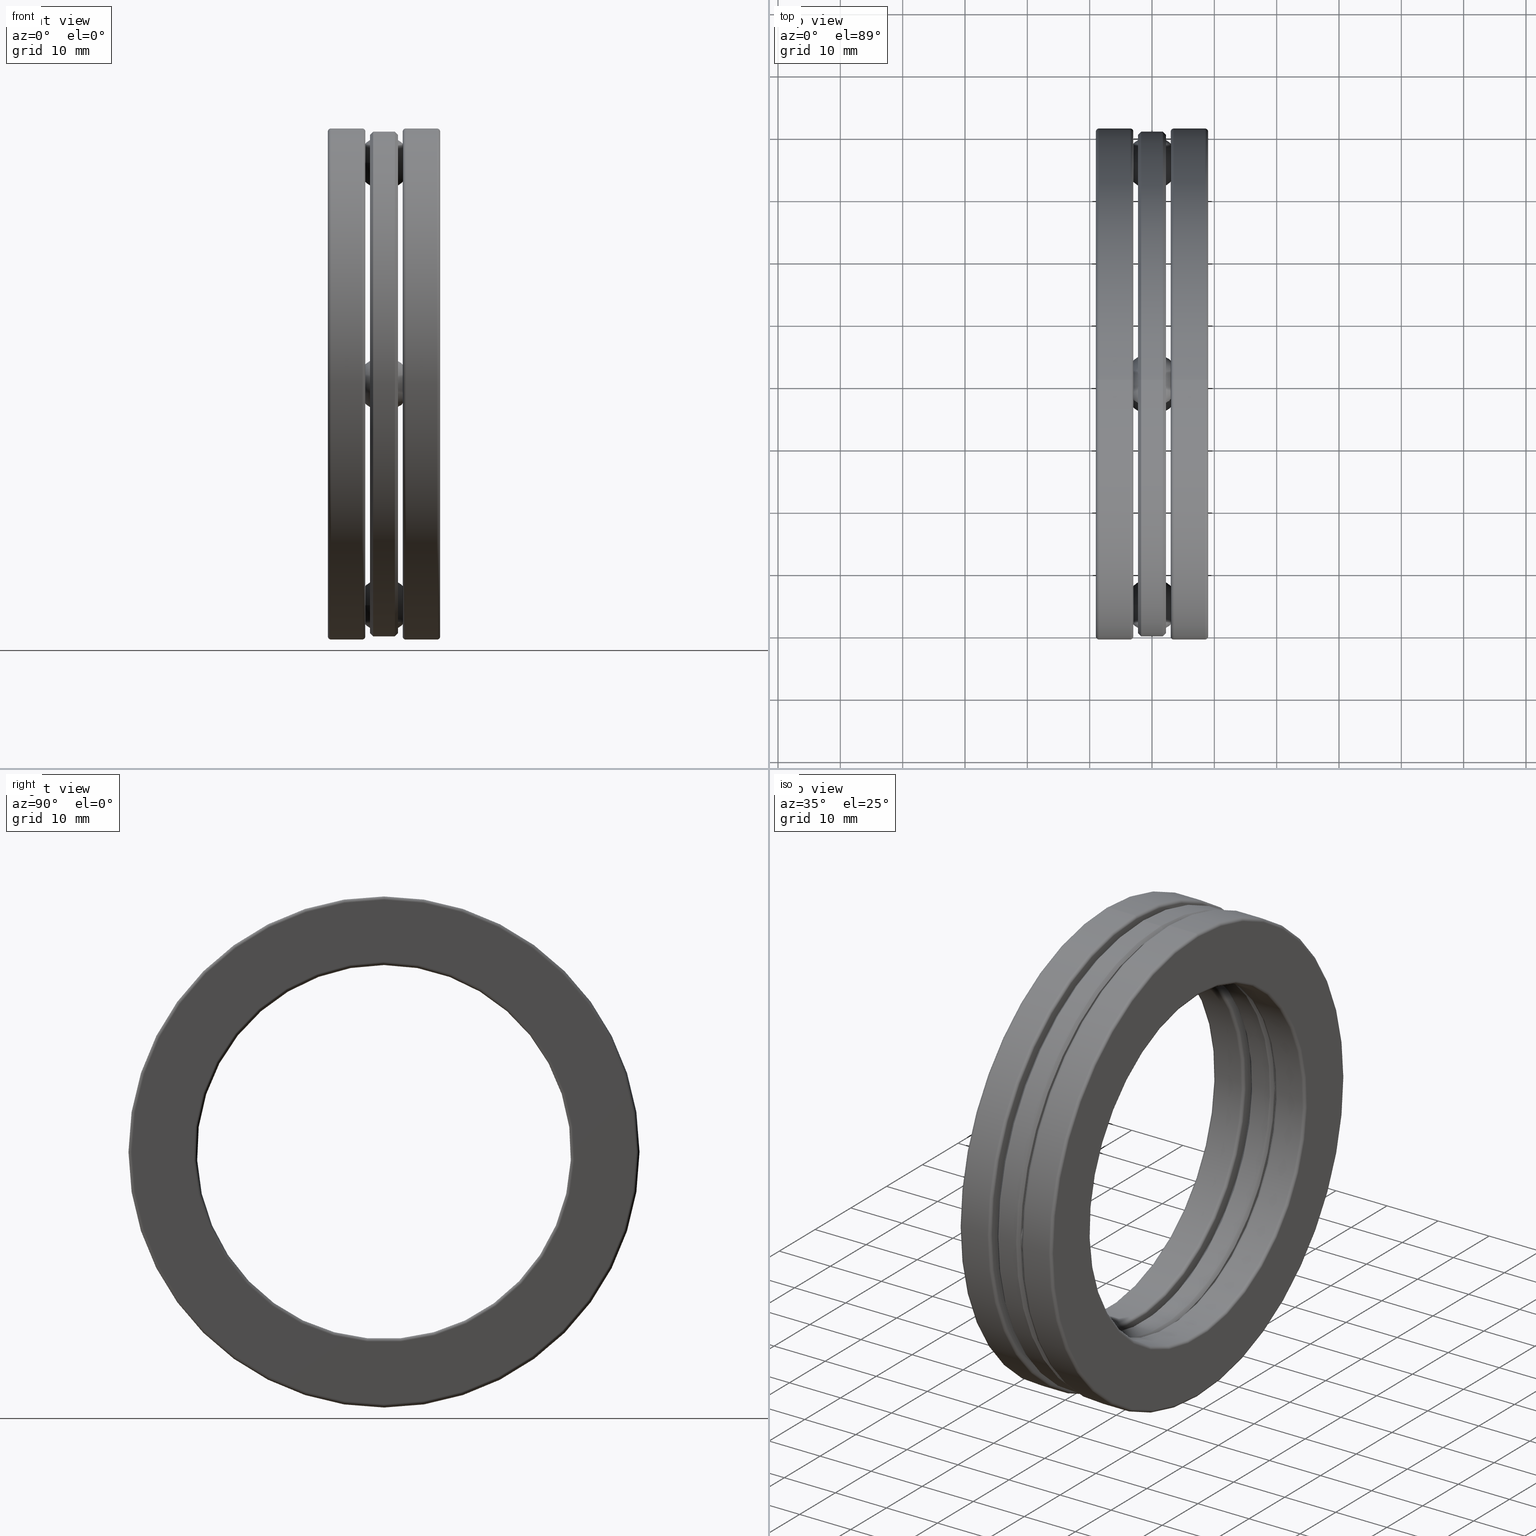
[diagram: canonical four-view strip — front | top / right | iso, engineering-drawing reading convention]
A machine part, canonical four-view strip (front | top / right | iso — engineering-drawing reading convention). The complete STEP part file that produces these views, byte-faithful:
ISO-10303-21;
HEADER;
FILE_DESCRIPTION (( 'STEP AP203' ),
    '1' );
FILE_NAME ('2912-ABB.step',
    '2017-03-07T16:43:04',
    ( '' ),
    ( '' ),
    'SwSTEP 2.0',
    'SolidWorks 2017',
    '' );
FILE_SCHEMA (( 'CONFIG_CONTROL_DESIGN' ));
ENDSEC;

DATA;
#1 = PERSON ( 'UNSPECIFIED', 'UNSPECIFIED', 'UNSPECIFIED', ('UNSPECIFIED'), ('UNSPECIFIED'), ('UNSPECIFIED') ) ;
#2 = FACE_OUTER_BOUND ( 'NONE', #351, .T. ) ;
#3 = ADVANCED_FACE ( 'NONE', ( #303, #838 ), #865, .F. ) ;
#4 = AXIS2_PLACEMENT_3D ( 'NONE', #381, #1000, #904 ) ;
#5 = DIRECTION ( 'NONE',  ( 0.0000000000000000000, 1.000000000000000000, -3.491481338843133400E-015 ) ) ;
#6 = DIRECTION ( 'NONE',  ( 0.0000000000000000000, 0.0000000000000000000, 1.000000000000000000 ) ) ;
#7 = CC_DESIGN_DATE_AND_TIME_ASSIGNMENT ( #742, #450, ( #976 ) ) ;
#8 = ORIENTED_EDGE ( 'NONE', *, *, #274, .F. ) ;
#9 = EDGE_LOOP ( 'NONE', ( #331, #694, #857, #805 ) ) ;
#10 = APPROVAL_DATE_TIME ( #322, #724 ) ;
#11 = ADVANCED_FACE ( 'NONE', ( #91, #254 ), #200, .T. ) ;
#12 = CYLINDRICAL_SURFACE ( 'NONE', #397, 0.1765000000000000200 ) ;
#13 = VERTEX_POINT ( 'NONE', #737 ) ;
#14 = FACE_OUTER_BOUND ( 'NONE', #476, .T. ) ;
#15 = AXIS2_PLACEMENT_3D ( 'NONE', #106, #659, #197 ) ;
#16 = CARTESIAN_POINT ( 'NONE',  ( 0.08862500000000003700, -1.397500000000000000, 0.0000000000000000000 ) ) ;
#17 = CARTESIAN_POINT ( 'NONE',  ( -0.08862499999999996800, 0.0000000000000000000, 0.0000000000000000000 ) ) ;
#18 = FACE_OUTER_BOUND ( 'NONE', #546, .T. ) ;
#19 = DIRECTION ( 'NONE',  ( -1.000000000000000000, -0.0000000000000000000, -0.0000000000000000000 ) ) ;
#20 = AXIS2_PLACEMENT_3D ( 'NONE', #505, #358, #344 ) ;
#21 = ORIENTED_EDGE ( 'NONE', *, *, #349, .F. ) ;
#22 = EDGE_LOOP ( 'NONE', ( #816 ) ) ;
#23 = FACE_OUTER_BOUND ( 'NONE', #1015, .T. ) ;
#24 = DIRECTION ( 'NONE',  ( 1.000000000000000000, 0.0000000000000000000, 0.0000000000000000000 ) ) ;
#25 = CARTESIAN_POINT ( 'NONE',  ( 0.1181690300000004800, 0.0000000000000000000, 0.0000000000000000000 ) ) ;
#26 = EDGE_CURVE ( 'NONE', #719, #719, #526, .T. ) ;
#27 = AXIS2_PLACEMENT_3D ( 'NONE', #241, #622, #555 ) ;
#28 = DIRECTION ( 'NONE',  ( 1.000000000000000000, 0.0000000000000000000, 0.0000000000000000000 ) ) ;
#29 = DIRECTION ( 'NONE',  ( -1.000000000000000000, -0.0000000000000000000, -0.0000000000000000000 ) ) ;
#30 = CARTESIAN_POINT ( 'NONE',  ( -0.08862499999999999500, 0.0000000000000000000, 0.0000000000000000000 ) ) ;
#31 = AXIS2_PLACEMENT_3D ( 'NONE', #101, #806, #165 ) ;
#32 = ORIENTED_EDGE ( 'NONE', *, *, #688, .T. ) ;
#33 = DIRECTION ( 'NONE',  ( 0.0000000000000000000, 0.0000000000000000000, 1.000000000000000000 ) ) ;
#34 = ORIENTED_EDGE ( 'NONE', *, *, #26, .T. ) ;
#35 = CLOSED_SHELL ( 'NONE', ( #709 ) ) ;
#36 = FACE_OUTER_BOUND ( 'NONE', #320, .T. ) ;
#37 = ORIENTED_EDGE ( 'NONE', *, *, #454, .T. ) ;
#38 = VERTEX_POINT ( 'NONE', #579 ) ;
#39 = CARTESIAN_POINT ( 'NONE',  ( 0.3545000000000000900, 0.0000000000000000000, 1.594000000000000300 ) ) ;
#40 = PLANE ( 'NONE',  #730 ) ;
#41 = EDGE_CURVE ( 'NONE', #38, #38, #634, .T. ) ;
#42 = CARTESIAN_POINT ( 'NONE',  ( -0.3544999999999999800, 0.0000000000000000000, 1.594000000000000100 ) ) ;
#43 = CIRCLE ( 'NONE', #647, 0.1765000000000000200 ) ;
#44 = DIRECTION ( 'NONE',  ( 0.0000000000000000000, 0.0000000000000000000, 1.000000000000000000 ) ) ;
#45 = DIRECTION ( 'NONE',  ( 0.0000000000000000000, 0.0000000000000000000, 1.000000000000000000 ) ) ;
#46 = CARTESIAN_POINT ( 'NONE',  ( -0.3345000000000000200, 0.0000000000000000000, 1.614000000000000100 ) ) ;
#47 = ORIENTED_EDGE ( 'NONE', *, *, #547, .T. ) ;
#48 = CARTESIAN_POINT ( 'NONE',  ( 0.0000000000000000000, 0.0000000000000000000, 0.0000000000000000000 ) ) ;
#49 = CIRCLE ( 'NONE', #149, 1.593999999999999600 ) ;
#50 = VERTEX_POINT ( 'NONE', #395 ) ;
#51 = PERSON_AND_ORGANIZATION ( #1, #394 ) ;
#52 = CC_DESIGN_PERSON_AND_ORGANIZATION_ASSIGNMENT ( #908, #681, ( #783 ) ) ;
#53 = FACE_BOUND ( 'NONE', #626, .T. ) ;
#54 = APPLICATION_CONTEXT ( 'configuration controlled 3d designs of mechanical parts and assemblies' ) ;
#55 = AXIS2_PLACEMENT_3D ( 'NONE', #313, #535, #613 ) ;
#56 = DIRECTION ( 'NONE',  ( 0.0000000000000000000, 0.0000000000000000000, 1.000000000000000000 ) ) ;
#57 = APPROVAL_ROLE ( '' ) ;
#58 = ORIENTED_EDGE ( 'NONE', *, *, #83, .F. ) ;
#59 = DIRECTION ( 'NONE',  ( 0.0000000000000000000, 0.0000000000000000000, 1.000000000000000000 ) ) ;
#60 = EDGE_CURVE ( 'NONE', #608, #608, #117, .T. ) ;
#61 = DIRECTION ( 'NONE',  ( 0.0000000000000000000, 0.0000000000000000000, 1.000000000000000000 ) ) ;
#62 = ORIENTED_EDGE ( 'NONE', *, *, #26, .F. ) ;
#63 = ORIENTED_EDGE ( 'NONE', *, *, #187, .F. ) ;
#64 = LOCAL_TIME ( 11, 43, 4.000000000000000000, #642 ) ;
#65 = CC_DESIGN_PERSON_AND_ORGANIZATION_ASSIGNMENT ( #981, #444, ( #184 ) ) ;
#66 = FACE_OUTER_BOUND ( 'NONE', #308, .T. ) ;
#67 = DIRECTION ( 'NONE',  ( 0.0000000000000000000, 0.0000000000000000000, 1.000000000000000000 ) ) ;
#68 = DIRECTION ( 'NONE',  ( 0.0000000000000000000, 1.000000000000000000, -1.083452462076478100E-014 ) ) ;
#69 = CARTESIAN_POINT ( 'NONE',  ( 0.08862500000000003700, 1.463803551309983800E-014, 1.397500000000000000 ) ) ;
#70 = AXIS2_PLACEMENT_3D ( 'NONE', #273, #504, #205 ) ;
#71 = ORIENTED_EDGE ( 'NONE', *, *, #525, .T. ) ;
#72 = CIRCLE ( 'NONE', #247, 1.221000000000000100 ) ;
#73 = VERTEX_POINT ( 'NONE', #775 ) ;
#74 = CALENDAR_DATE ( 2017, 7, 3 ) ;
#75 = FACE_OUTER_BOUND ( 'NONE', #463, .T. ) ;
#76 = EDGE_LOOP ( 'NONE', ( #935 ) ) ;
#77 = AXIS2_PLACEMENT_3D ( 'NONE', #25, #431, #113 ) ;
#78 = DIRECTION ( 'NONE',  ( -1.000000000000000000, -0.0000000000000000000, -0.0000000000000000000 ) ) ;
#79 = ADVANCED_FACE ( 'NONE', ( ), #690, .T. ) ;
#80 = DIRECTION ( 'NONE',  ( 0.0000000000000000000, 0.0000000000000000000, -1.000000000000000000 ) ) ;
#81 = ADVANCED_FACE ( 'NONE', ( #573, #18 ), #231, .T. ) ;
#82 = CYLINDRICAL_SURFACE ( 'NONE', #569, 1.614000000000000300 ) ;
#83 = EDGE_CURVE ( 'NONE', #298, #773, #765, .T. ) ;
#84 = AXIS2_PLACEMENT_3D ( 'NONE', #93, #952, #948 ) ;
#85 = CARTESIAN_POINT ( 'NONE',  ( -0.08862499999999996800, -1.221000000000000100, 0.0000000000000000000 ) ) ;
#86 = EDGE_LOOP ( 'NONE', ( #37 ) ) ;
#87 = ORIENTED_EDGE ( 'NONE', *, *, #559, .T. ) ;
#88 = CYLINDRICAL_SURFACE ( 'NONE', #520, 1.181000000000000000 ) ;
#89 = AXIS2_PLACEMENT_3D ( 'NONE', #120, #452, #772 ) ;
#90 = CARTESIAN_POINT ( 'NONE',  ( -0.08862499999999996800, 0.0000000000000000000, 0.0000000000000000000 ) ) ;
#91 = FACE_OUTER_BOUND ( 'NONE', #282, .T. ) ;
#92 = AXIS2_PLACEMENT_3D ( 'NONE', #894, #490, #116 ) ;
#93 = CARTESIAN_POINT ( 'NONE',  ( 0.08862499999999999500, 0.0000000000000000000, 0.0000000000000000000 ) ) ;
#94 = ORIENTED_EDGE ( 'NONE', *, *, #987, .T. ) ;
#95 = VERTEX_POINT ( 'NONE', #801 ) ;
#96 = DIRECTION ( 'NONE',  ( -1.000000000000000000, -0.0000000000000000000, -0.0000000000000000000 ) ) ;
#97 = LENGTH_MEASURE_WITH_UNIT ( LENGTH_MEASURE( 0.02539999999999999900 ), #584 );
#98 = CIRCLE ( 'NONE', #301, 1.221000000000000100 ) ;
#99 = FACE_OUTER_BOUND ( 'NONE', #1011, .T. ) ;
#100 = CARTESIAN_POINT ( 'NONE',  ( -0.08862499999999996800, 1.397500000000000000, 0.0000000000000000000 ) ) ;
#101 = CARTESIAN_POINT ( 'NONE',  ( 0.08862500000000003700, -4.879345171033278400E-015, -1.397500000000000000 ) ) ;
#102 = DIRECTION ( 'NONE',  ( 1.000000000000000000, -0.0000000000000000000, 0.0000000000000000000 ) ) ;
#103 = ORIENTED_EDGE ( 'NONE', *, *, #384, .T. ) ;
#104 = DIRECTION ( 'NONE',  ( 0.0000000000000000000, 0.0000000000000000000, 1.000000000000000000 ) ) ;
#105 = ORIENTED_EDGE ( 'NONE', *, *, #253, .T. ) ;
#106 = CARTESIAN_POINT ( 'NONE',  ( 0.08862499999999999500, 0.0000000000000000000, 0.0000000000000000000 ) ) ;
#107 = ORIENTED_EDGE ( 'NONE', *, *, #41, .T. ) ;
#108 = ORIENTED_EDGE ( 'NONE', *, *, #193, .F. ) ;
#109 = COORDINATED_UNIVERSAL_TIME_OFFSET ( 5, 0, .BEHIND. ) ;
#110 = ORIENTED_EDGE ( 'NONE', *, *, #735, .T. ) ;
#111 = DIRECTION ( 'NONE',  ( 0.0000000000000000000, 0.0000000000000000000, 1.000000000000000000 ) ) ;
#112 = CARTESIAN_POINT ( 'NONE',  ( -0.3345000000000000200, 0.0000000000000000000, 0.0000000000000000000 ) ) ;
#113 = DIRECTION ( 'NONE',  ( 0.0000000000000000000, 0.0000000000000000000, 1.000000000000000000 ) ) ;
#114 = EDGE_CURVE ( 'NONE', #487, #487, #370, .T. ) ;
#115 = CC_DESIGN_APPROVAL ( #724, ( #976 ) ) ;
#116 = DIRECTION ( 'NONE',  ( 0.0000000000000000000, 0.0000000000000000000, 1.000000000000000000 ) ) ;
#117 = CIRCLE ( 'NONE', #327, 1.273208687556776500 ) ;
#118 = ORIENTED_EDGE ( 'NONE', *, *, #41, .F. ) ;
#119 = CARTESIAN_POINT ( 'NONE',  ( 0.3545000000000000900, 0.0000000000000000000, 1.201000000000000100 ) ) ;
#120 = CARTESIAN_POINT ( 'NONE',  ( -0.08862499999999999500, 0.0000000000000000000, 0.0000000000000000000 ) ) ;
#121 = DIRECTION ( 'NONE',  ( 0.0000000000000000000, 0.0000000000000000000, 1.000000000000000000 ) ) ;
#122 = AXIS2_PLACEMENT_3D ( 'NONE', #297, #515, #224 ) ;
#123 = EDGE_LOOP ( 'NONE', ( #190 ) ) ;
#124 =( NAMED_UNIT ( * ) SI_UNIT ( $, .STERADIAN. ) SOLID_ANGLE_UNIT ( ) );
#125 = FACE_OUTER_BOUND ( 'NONE', #140, .T. ) ;
#126 = ORIENTED_EDGE ( 'NONE', *, *, #480, .T. ) ;
#127 = LOCAL_TIME ( 11, 43, 4.000000000000000000, #109 ) ;
#128 = EDGE_LOOP ( 'NONE', ( #879, #126, #435, #625 ) ) ;
#129 = FACE_OUTER_BOUND ( 'NONE', #859, .T. ) ;
#130 = CARTESIAN_POINT ( 'NONE',  ( 0.0000000000000000000, 0.0000000000000000000, 0.0000000000000000000 ) ) ;
#131 = DIRECTION ( 'NONE',  ( 0.0000000000000000000, 0.0000000000000000000, 1.000000000000000000 ) ) ;
#132 = DIRECTION ( 'NONE',  ( -1.000000000000000000, -0.0000000000000000000, -0.0000000000000000000 ) ) ;
#133 = EDGE_CURVE ( 'NONE', #808, #808, #752, .T. ) ;
#134 = DIRECTION ( 'NONE',  ( -1.000000000000000000, -0.0000000000000000000, -0.0000000000000000000 ) ) ;
#135 = APPROVAL_STATUS ( 'not_yet_approved' ) ;
#136 = DIRECTION ( 'NONE',  ( 0.0000000000000000000, 0.0000000000000000000, 1.000000000000000000 ) ) ;
#137 = EDGE_CURVE ( 'NONE', #619, #691, #822, .T. ) ;
#138 = CARTESIAN_POINT ( 'NONE',  ( 0.08862500000000005100, 0.0000000000000000000, 0.0000000000000000000 ) ) ;
#139 = EDGE_LOOP ( 'NONE', ( #826, #87 ) ) ;
#140 = EDGE_LOOP ( 'NONE', ( #949 ) ) ;
#141 = AXIS2_PLACEMENT_3D ( 'NONE', #482, #102, #643 ) ;
#142 = ORIENTED_EDGE ( 'NONE', *, *, #83, .T. ) ;
#143 = ORIENTED_EDGE ( 'NONE', *, *, #1004, .F. ) ;
#144 = DIRECTION ( 'NONE',  ( 1.000000000000000000, 0.0000000000000000000, 0.0000000000000000000 ) ) ;
#145 = CIRCLE ( 'NONE', #1002, 1.221000000000000100 ) ;
#146 = CARTESIAN_POINT ( 'NONE',  ( 0.0000000000000000000, 0.0000000000000000000, 0.0000000000000000000 ) ) ;
#147 = PERSON_AND_ORGANIZATION_ROLE ( 'design_supplier' ) ;
#148 = DIRECTION ( 'NONE',  ( 1.000000000000000000, 0.0000000000000000000, 0.0000000000000000000 ) ) ;
#149 = AXIS2_PLACEMENT_3D ( 'NONE', #289, #910, #999 ) ;
#150 = CARTESIAN_POINT ( 'NONE',  ( -0.3544999999999999800, 0.0000000000000000000, 0.0000000000000000000 ) ) ;
#151 = CARTESIAN_POINT ( 'NONE',  ( 6.829619984160658000E-017, 1.463803551309983800E-014, 1.397500000000000000 ) ) ;
#152 = DIRECTION ( 'NONE',  ( 1.000000000000000000, 0.0000000000000000000, 0.0000000000000000000 ) ) ;
#153 = EDGE_LOOP ( 'NONE', ( #771, #32, #497, #601 ) ) ;
#154 = EDGE_CURVE ( 'NONE', #794, #794, #516, .T. ) ;
#155 = DIRECTION ( 'NONE',  ( 1.000000000000000000, 0.0000000000000000000, 0.0000000000000000000 ) ) ;
#156 = EDGE_LOOP ( 'NONE', ( #655 ) ) ;
#157 = PERSON_AND_ORGANIZATION ( #1, #394 ) ;
#158 = ADVANCED_BREP_SHAPE_REPRESENTATION ( '2912-ABB', ( #650, #571, #684, #871, #503, #415, #473, #814 ), #422 ) ;
#159 = DIRECTION ( 'NONE',  ( 0.0000000000000000000, 0.0000000000000000000, 1.000000000000000000 ) ) ;
#160 = ADVANCED_FACE ( 'NONE', ( #749 ), #366, .F. ) ;
#161 = CC_DESIGN_PERSON_AND_ORGANIZATION_ASSIGNMENT ( #819, #147, ( #1009 ) ) ;
#162 = ORIENTED_EDGE ( 'NONE', *, *, #778, .F. ) ;
#163 = CARTESIAN_POINT ( 'NONE',  ( -0.08862499999999996800, -8.573301290314987900E-018, 0.0000000000000000000 ) ) ;
#164 = ADVANCED_FACE ( 'NONE', ( #201, #2 ), #82, .T. ) ;
#165 = DIRECTION ( 'NONE',  ( 0.0000000000000000000, -1.000000000000000000, 3.095578463075651900E-015 ) ) ;
#166 = EDGE_LOOP ( 'NONE', ( #759 ) ) ;
#167 = ORIENTED_EDGE ( 'NONE', *, *, #434, .F. ) ;
#168 = ORIENTED_EDGE ( 'NONE', *, *, #955, .F. ) ;
#169 = VERTEX_POINT ( 'NONE', #666 ) ;
#170 = AXIS2_PLACEMENT_3D ( 'NONE', #645, #280, #360 ) ;
#171 = DIRECTION ( 'NONE',  ( 0.0000000000000000000, 0.0000000000000000000, 1.000000000000000000 ) ) ;
#172 = ADVANCED_FACE ( 'NONE', ( #429, #291 ), #591, .T. ) ;
#173 = DIRECTION ( 'NONE',  ( 0.0000000000000000000, 0.0000000000000000000, 1.000000000000000000 ) ) ;
#174 = EDGE_CURVE ( 'NONE', #50, #95, #764, .T. ) ;
#175 = APPROVAL ( #594, 'UNSPECIFIED' ) ;
#176 = EDGE_LOOP ( 'NONE', ( #167 ) ) ;
#177 = APPROVAL_DATE_TIME ( #604, #631 ) ;
#178 = ADVANCED_FACE ( 'NONE', ( #597, #572 ), #790, .F. ) ;
#179 = CIRCLE ( 'NONE', #170, 0.1765000000000000200 ) ;
#180 = EDGE_LOOP ( 'NONE', ( #319 ) ) ;
#181 = AXIS2_PLACEMENT_3D ( 'NONE', #48, #762, #131 ) ;
#182 = CIRCLE ( 'NONE', #230, 1.181000000000000000 ) ;
#183 = CIRCLE ( 'NONE', #755, 0.1765000000000000200 ) ;
#184 = PRODUCT ( '2912-ABB', '2912-ABB', '', ( #586 ) ) ;
#185 = CARTESIAN_POINT ( 'NONE',  ( -0.1381690299999999100, 0.0000000000000000000, 0.0000000000000000000 ) ) ;
#186 = EDGE_CURVE ( 'NONE', #830, #50, #43, .T. ) ;
#187 = EDGE_CURVE ( 'NONE', #617, #617, #563, .T. ) ;
#188 = DIRECTION ( 'NONE',  ( 0.0000000000000000000, 0.0000000000000000000, 1.000000000000000000 ) ) ;
#189 = ORIENTED_EDGE ( 'NONE', *, *, #792, .F. ) ;
#190 = ORIENTED_EDGE ( 'NONE', *, *, #240, .T. ) ;
#191 = FACE_BOUND ( 'NONE', #912, .T. ) ;
#192 = CIRCLE ( 'NONE', #745, 0.1765000000000000200 ) ;
#193 = EDGE_CURVE ( 'NONE', #261, #261, #929, .T. ) ;
#194 = CIRCLE ( 'NONE', #355, 1.221000000000000100 ) ;
#195 = AXIS2_PLACEMENT_3D ( 'NONE', #468, #542, #80 ) ;
#196 = CARTESIAN_POINT ( 'NONE',  ( 0.08862499999999999500, 0.0000000000000000000, 0.0000000000000000000 ) ) ;
#197 = DIRECTION ( 'NONE',  ( 0.0000000000000000000, 0.0000000000000000000, 1.000000000000000000 ) ) ;
#198 = DIRECTION ( 'NONE',  ( 0.0000000000000000000, 0.0000000000000000000, 1.000000000000000000 ) ) ;
#199 = DIRECTION ( 'NONE',  ( -1.000000000000000000, 0.0000000000000000000, 0.0000000000000000000 ) ) ;
#200 = TOROIDAL_SURFACE ( 'NONE', #4, 1.201000000000000100, 0.01999999999999971900 ) ;
#201 = FACE_OUTER_BOUND ( 'NONE', #932, .T. ) ;
#202 = AXIS2_PLACEMENT_3D ( 'NONE', #371, #839, #283 ) ;
#203 = CARTESIAN_POINT ( 'NONE',  ( -0.3544999999999999300, 0.0000000000000000000, 1.201000000000000100 ) ) ;
#204 = DIRECTION ( 'NONE',  ( 0.0000000000000000000, 0.0000000000000000000, 1.000000000000000000 ) ) ;
#205 = DIRECTION ( 'NONE',  ( 0.0000000000000000000, 0.0000000000000000000, 1.000000000000000000 ) ) ;
#206 = AXIS2_PLACEMENT_3D ( 'NONE', #151, #599, #848 ) ;
#207 = DIRECTION ( 'NONE',  ( 0.0000000000000000000, 0.0000000000000000000, 1.000000000000000000 ) ) ;
#208 = DIRECTION ( 'NONE',  ( 0.0000000000000000000, 0.0000000000000000000, 1.000000000000000000 ) ) ;
#209 = EDGE_LOOP ( 'NONE', ( #957 ) ) ;
#210 = DIRECTION ( 'NONE',  ( 0.0000000000000000000, 0.0000000000000000000, 1.000000000000000000 ) ) ;
#211 = DIRECTION ( 'NONE',  ( -1.000000000000000000, 0.0000000000000000000, 0.0000000000000000000 ) ) ;
#212 = AXIS2_PLACEMENT_3D ( 'NONE', #315, #551, #171 ) ;
#213 = VERTEX_POINT ( 'NONE', #558 ) ;
#214 = DIRECTION ( 'NONE',  ( -1.000000000000000000, -0.0000000000000000000, -0.0000000000000000000 ) ) ;
#215 = ORIENTED_EDGE ( 'NONE', *, *, #60, .T. ) ;
#216 = DIRECTION ( 'NONE',  ( 0.0000000000000000000, -1.000000000000000000, 3.095578463075651900E-015 ) ) ;
#217 = CIRCLE ( 'NONE', #856, 0.1765000000000000200 ) ;
#218 = CYLINDRICAL_SURFACE ( 'NONE', #181, 1.614000000000000100 ) ;
#219 = DIRECTION ( 'NONE',  ( 0.0000000000000000000, 1.000000000000000000, -1.083452462076478100E-014 ) ) ;
#220 = AXIS2_PLACEMENT_3D ( 'NONE', #398, #852, #939 ) ;
#221 = DIRECTION ( 'NONE',  ( -1.000000000000000000, -0.0000000000000000000, -0.0000000000000000000 ) ) ;
#222 = APPROVAL_ROLE ( '' ) ;
#223 = EDGE_CURVE ( 'NONE', #667, #589, #352, .T. ) ;
#224 = DIRECTION ( 'NONE',  ( 0.0000000000000000000, 0.0000000000000000000, 1.000000000000000000 ) ) ;
#225 = CC_DESIGN_APPROVAL ( #175, ( #1009 ) ) ;
#226 = VERTEX_POINT ( 'NONE', #39 ) ;
#227 = DIRECTION ( 'NONE',  ( -1.000000000000000000, -0.0000000000000000000, -0.0000000000000000000 ) ) ;
#228 = CARTESIAN_POINT ( 'NONE',  ( -0.3544999999999999300, 0.0000000000000000000, 0.0000000000000000000 ) ) ;
#229 = DIRECTION ( 'NONE',  ( 0.0000000000000000000, 0.0000000000000000000, -1.000000000000000000 ) ) ;
#230 = AXIS2_PLACEMENT_3D ( 'NONE', #928, #221, #61 ) ;
#231 = TOROIDAL_SURFACE ( 'NONE', #722, 1.201000000000000100, 0.01999999999999995900 ) ;
#232 = ADVANCED_FACE ( 'NONE', ( ), #521, .T. ) ;
#233 = EDGE_LOOP ( 'NONE', ( #34 ) ) ;
#234 = EDGE_CURVE ( 'NONE', #1016, #1016, #392, .T. ) ;
#235 = EDGE_LOOP ( 'NONE', ( #62 ) ) ;
#236 = ORIENTED_EDGE ( 'NONE', *, *, #133, .F. ) ;
#237 = VERTEX_POINT ( 'NONE', #369 ) ;
#238 = ADVANCED_FACE ( 'NONE', ( #980, #36 ), #88, .F. ) ;
#239 = SPHERICAL_SURFACE ( 'NONE', #920, 0.1715000000000000700 ) ;
#240 = EDGE_CURVE ( 'NONE', #670, #670, #884, .T. ) ;
#241 = CARTESIAN_POINT ( 'NONE',  ( 0.1181690300000004900, 2.053561243757977000E-017, 0.0000000000000000000 ) ) ;
#242 = AXIS2_PLACEMENT_3D ( 'NONE', #602, #305, #396 ) ;
#243 = ORIENTED_EDGE ( 'NONE', *, *, #792, .T. ) ;
#244 = CARTESIAN_POINT ( 'NONE',  ( 0.08862500000000005100, 0.0000000000000000000, 0.0000000000000000000 ) ) ;
#245 = CIRCLE ( 'NONE', #242, 1.614000000000000300 ) ;
#246 = ORIENTED_EDGE ( 'NONE', *, *, #868, .T. ) ;
#247 = AXIS2_PLACEMENT_3D ( 'NONE', #916, #918, #677 ) ;
#248 = CARTESIAN_POINT ( 'NONE',  ( 6.829619984160658000E-017, -4.879345171033278400E-015, -1.397500000000000000 ) ) ;
#249 = FACE_OUTER_BOUND ( 'NONE', #807, .T. ) ;
#250 = CARTESIAN_POINT ( 'NONE',  ( -0.08862499999999996800, -4.263098714727465500E-015, -1.221000000000000100 ) ) ;
#251 = ADVANCED_FACE ( 'NONE', ( #498, #682 ), #12, .F. ) ;
#252 = CARTESIAN_POINT ( 'NONE',  ( -0.08862499999999996800, -4.879345171033278400E-015, -1.397500000000000000 ) ) ;
#253 = EDGE_CURVE ( 'NONE', #743, #743, #478, .T. ) ;
#254 = FACE_OUTER_BOUND ( 'NONE', #679, .T. ) ;
#255 = CARTESIAN_POINT ( 'NONE',  ( 0.06862499999999997800, 0.0000000000000000000, 0.0000000000000000000 ) ) ;
#256 = CARTESIAN_POINT ( 'NONE',  ( -0.08862499999999999500, 1.573999999999999600, 0.0000000000000000000 ) ) ;
#257 = ORIENTED_EDGE ( 'NONE', *, *, #462, .F. ) ;
#258 = CIRCLE ( 'NONE', #122, 1.614000000000000300 ) ;
#259 = EDGE_LOOP ( 'NONE', ( #924 ) ) ;
#260 = CALENDAR_DATE ( 2017, 7, 3 ) ;
#261 = VERTEX_POINT ( 'NONE', #905 ) ;
#262 = AXIS2_PLACEMENT_3D ( 'NONE', #196, #561, #964 ) ;
#263 = CARTESIAN_POINT ( 'NONE',  ( 0.08862499999999999500, 0.0000000000000000000, 0.0000000000000000000 ) ) ;
#264 = CIRCLE ( 'NONE', #863, 0.1765000000000000200 ) ;
#265 = CARTESIAN_POINT ( 'NONE',  ( 0.3545000000000000900, 0.0000000000000000000, 0.0000000000000000000 ) ) ;
#266 = AXIS2_PLACEMENT_3D ( 'NONE', #770, #1006, #531 ) ;
#267 = CARTESIAN_POINT ( 'NONE',  ( 0.08862500000000003700, 1.285995193547253800E-017, 0.0000000000000000000 ) ) ;
#268 = DIRECTION ( 'NONE',  ( 1.000000000000000000, -0.0000000000000000000, 0.0000000000000000000 ) ) ;
#269 = EDGE_LOOP ( 'NONE', ( #350 ) ) ;
#270 = CARTESIAN_POINT ( 'NONE',  ( 0.06862499999999997800, 0.0000000000000000000, 1.593999999999999600 ) ) ;
#271 = ORIENTED_EDGE ( 'NONE', *, *, #133, .T. ) ;
#272 = PERSON_AND_ORGANIZATION ( #1, #394 ) ;
#273 = CARTESIAN_POINT ( 'NONE',  ( 0.08862500000000005100, 0.0000000000000000000, 0.0000000000000000000 ) ) ;
#274 = EDGE_CURVE ( 'NONE', #667, #830, #145, .T. ) ;
#275 = FACE_OUTER_BOUND ( 'NONE', #310, .T. ) ;
#276 = CC_DESIGN_PERSON_AND_ORGANIZATION_ASSIGNMENT ( #533, #376, ( #1009 ) ) ;
#277 = CARTESIAN_POINT ( 'NONE',  ( 0.06862500000000004700, 0.0000000000000000000, 1.201000000000000100 ) ) ;
#278 = DIRECTION ( 'NONE',  ( 0.0000000000000000000, 0.0000000000000000000, -1.000000000000000000 ) ) ;
#279 = DIRECTION ( 'NONE',  ( 1.000000000000000000, 0.0000000000000000000, 0.0000000000000000000 ) ) ;
#280 = DIRECTION ( 'NONE',  ( -1.000000000000000000, -0.0000000000000000000, -0.0000000000000000000 ) ) ;
#281 = AXIS2_PLACEMENT_3D ( 'NONE', #600, #837, #219 ) ;
#282 = EDGE_LOOP ( 'NONE', ( #923 ) ) ;
#283 = DIRECTION ( 'NONE',  ( 0.0000000000000000000, 0.0000000000000000000, 1.000000000000000000 ) ) ;
#284 = FACE_OUTER_BOUND ( 'NONE', #153, .T. ) ;
#285 = FACE_OUTER_BOUND ( 'NONE', #413, .T. ) ;
#286 = ORIENTED_EDGE ( 'NONE', *, *, #881, .F. ) ;
#287 = VERTEX_POINT ( 'NONE', #661 ) ;
#288 = CARTESIAN_POINT ( 'NONE',  ( 0.1381690300000005500, 0.0000000000000000000, 0.0000000000000000000 ) ) ;
#289 = CARTESIAN_POINT ( 'NONE',  ( -0.06862500000000001900, 0.0000000000000000000, 0.0000000000000000000 ) ) ;
#290 = EDGE_CURVE ( 'NONE', #966, #589, #846, .T. ) ;
#291 = FACE_OUTER_BOUND ( 'NONE', #76, .T. ) ;
#292 = EDGE_CURVE ( 'NONE', #532, #966, #179, .T. ) ;
#293 = DIRECTION ( 'NONE',  ( -1.000000000000000000, -0.0000000000000000000, -0.0000000000000000000 ) ) ;
#294 = EDGE_CURVE ( 'NONE', #589, #50, #909, .T. ) ;
#295 = AXIS2_PLACEMENT_3D ( 'NONE', #875, #786, #332 ) ;
#296 = EDGE_LOOP ( 'NONE', ( #63 ) ) ;
#297 = CARTESIAN_POINT ( 'NONE',  ( 0.3345000000000006300, 0.0000000000000000000, 0.0000000000000000000 ) ) ;
#298 = VERTEX_POINT ( 'NONE', #893 ) ;
#299 = APPROVAL_PERSON_ORGANIZATION ( #51, #631, #57 ) ;
#300 = CARTESIAN_POINT ( 'NONE',  ( 0.0000000000000000000, 0.0000000000000000000, 0.0000000000000000000 ) ) ;
#301 = AXIS2_PLACEMENT_3D ( 'NONE', #138, #214, #451 ) ;
#302 = DIRECTION ( 'NONE',  ( 1.000000000000000000, -0.0000000000000000000, -0.0000000000000000000 ) ) ;
#303 = FACE_OUTER_BOUND ( 'NONE', #616, .T. ) ;
#304 = EDGE_CURVE ( 'NONE', #169, #169, #466, .T. ) ;
#305 = DIRECTION ( 'NONE',  ( -1.000000000000000000, -0.0000000000000000000, -0.0000000000000000000 ) ) ;
#306 = ORIENTED_EDGE ( 'NONE', *, *, #462, .T. ) ;
#307 = ADVANCED_FACE ( 'NONE', ( #934, #309 ), #606, .T. ) ;
#308 = EDGE_LOOP ( 'NONE', ( #71, #968 ) ) ;
#309 = FACE_OUTER_BOUND ( 'NONE', #180, .T. ) ;
#310 = EDGE_LOOP ( 'NONE', ( #347, #577 ) ) ;
#311 = VERTEX_POINT ( 'NONE', #514 ) ;
#312 = FACE_OUTER_BOUND ( 'NONE', #946, .T. ) ;
#313 = CARTESIAN_POINT ( 'NONE',  ( -0.08862499999999999500, 0.0000000000000000000, 0.0000000000000000000 ) ) ;
#314 = CIRCLE ( 'NONE', #965, 0.1765000000000000200 ) ;
#315 = CARTESIAN_POINT ( 'NONE',  ( 0.08862500000000003700, -1.397500000000000000, 0.0000000000000000000 ) ) ;
#316 = DIMENSIONAL_EXPONENTS ( 1.000000000000000000, 0.0000000000000000000, 0.0000000000000000000, 0.0000000000000000000, 0.0000000000000000000, 0.0000000000000000000, 0.0000000000000000000 ) ;
#317 = DIRECTION ( 'NONE',  ( 0.0000000000000000000, 0.0000000000000000000, 1.000000000000000000 ) ) ;
#318 = DIRECTION ( 'NONE',  ( -1.000000000000000000, -0.0000000000000000000, -0.0000000000000000000 ) ) ;
#319 = ORIENTED_EDGE ( 'NONE', *, *, #629, .T. ) ;
#320 = EDGE_LOOP ( 'NONE', ( #539 ) ) ;
#321 = ORIENTED_EDGE ( 'NONE', *, *, #274, .T. ) ;
#322 = DATE_AND_TIME ( #959, #960 ) ;
#323 = TOROIDAL_SURFACE ( 'NONE', #931, 1.594000000000000300, 0.01999999999999975400 ) ;
#324 = CARTESIAN_POINT ( 'NONE',  ( 0.08862499999999999500, -1.573999999999999600, 0.0000000000000000000 ) ) ;
#325 = ADVANCED_FACE ( 'NONE', ( #338, #285 ), #40, .F. ) ;
#326 = CIRCLE ( 'NONE', #342, 1.573999999999999600 ) ;
#327 = AXIS2_PLACEMENT_3D ( 'NONE', #1001, #674, #67 ) ;
#328 = DIRECTION ( 'NONE',  ( -1.000000000000000000, 0.0000000000000000000, 0.0000000000000000000 ) ) ;
#329 = CC_DESIGN_APPROVAL ( #631, ( #783 ) ) ;
#330 = ADVANCED_FACE ( 'NONE', ( #717 ), #651, .F. ) ;
#331 = ORIENTED_EDGE ( 'NONE', *, *, #290, .F. ) ;
#332 = DIRECTION ( 'NONE',  ( 0.0000000000000000000, 0.0000000000000000000, 1.000000000000000000 ) ) ;
#333 = DIRECTION ( 'NONE',  ( -1.000000000000000000, -0.0000000000000000000, -0.0000000000000000000 ) ) ;
#334 = ORIENTED_EDGE ( 'NONE', *, *, #1004, .T. ) ;
#335 = DATE_AND_TIME ( #459, #445 ) ;
#336 = AXIS2_PLACEMENT_3D ( 'NONE', #748, #683, #136 ) ;
#337 = DIRECTION ( 'NONE',  ( -1.000000000000000000, -0.0000000000000000000, -0.0000000000000000000 ) ) ;
#338 = FACE_BOUND ( 'NONE', #296, .T. ) ;
#339 = FACE_BOUND ( 'NONE', #86, .T. ) ;
#340 = CYLINDRICAL_SURFACE ( 'NONE', #836, 0.1765000000000000200 ) ;
#341 = DIRECTION ( 'NONE',  ( 0.0000000000000000000, 0.0000000000000000000, -1.000000000000000000 ) ) ;
#342 = AXIS2_PLACEMENT_3D ( 'NONE', #402, #227, #854 ) ;
#343 = CARTESIAN_POINT ( 'NONE',  ( 0.08862500000000005100, 0.0000000000000000000, 0.0000000000000000000 ) ) ;
#344 = DIRECTION ( 'NONE',  ( 0.0000000000000000000, 0.0000000000000000000, 1.000000000000000000 ) ) ;
#345 = CARTESIAN_POINT ( 'NONE',  ( 0.08862500000000003700, 1.463803551309983800E-014, 1.397500000000000000 ) ) ;
#346 = ORIENTED_EDGE ( 'NONE', *, *, #234, .T. ) ;
#347 = ORIENTED_EDGE ( 'NONE', *, *, #595, .T. ) ;
#348 = CARTESIAN_POINT ( 'NONE',  ( 0.1381690300000005000, 0.0000000000000000000, 0.0000000000000000000 ) ) ;
#349 = EDGE_CURVE ( 'NONE', #226, #226, #906, .T. ) ;
#350 = ORIENTED_EDGE ( 'NONE', *, *, #938, .T. ) ;
#351 = EDGE_LOOP ( 'NONE', ( #704 ) ) ;
#352 = CIRCLE ( 'NONE', #506, 0.1765000000000000200 ) ;
#353 = ORIENTED_EDGE ( 'NONE', *, *, #525, .F. ) ;
#354 = CLOSED_SHELL ( 'NONE', ( #79 ) ) ;
#355 = AXIS2_PLACEMENT_3D ( 'NONE', #405, #633, #543 ) ;
#356 = DIRECTION ( 'NONE',  ( 1.000000000000000000, 0.0000000000000000000, 0.0000000000000000000 ) ) ;
#357 = CYLINDRICAL_SURFACE ( 'NONE', #541, 0.1765000000000000200 ) ;
#358 = DIRECTION ( 'NONE',  ( -1.000000000000000000, -0.0000000000000000000, -0.0000000000000000000 ) ) ;
#359 =( CONVERSION_BASED_UNIT ( 'INCH', #97 ) LENGTH_UNIT ( ) NAMED_UNIT ( #316 ) );
#360 = DIRECTION ( 'NONE',  ( 0.0000000000000000000, 0.0000000000000000000, -1.000000000000000000 ) ) ;
#361 = DIRECTION ( 'NONE',  ( -1.000000000000000000, -0.0000000000000000000, -0.0000000000000000000 ) ) ;
#362 = DIRECTION ( 'NONE',  ( -1.000000000000000000, -0.0000000000000000000, -0.0000000000000000000 ) ) ;
#363 = CARTESIAN_POINT ( 'NONE',  ( -0.08862499999999996800, -8.573301290314987900E-018, 0.0000000000000000000 ) ) ;
#364 = VERTEX_POINT ( 'NONE', #277 ) ;
#365 = EDGE_CURVE ( 'NONE', #769, #882, #858, .T. ) ;
#366 = PLANE ( 'NONE',  #460 ) ;
#367 = DIRECTION ( 'NONE',  ( -1.000000000000000000, -0.0000000000000000000, -0.0000000000000000000 ) ) ;
#368 = FACE_BOUND ( 'NONE', #9, .T. ) ;
#369 = CARTESIAN_POINT ( 'NONE',  ( -0.06862500000000001900, 0.0000000000000000000, 1.593999999999999600 ) ) ;
#370 = CIRCLE ( 'NONE', #92, 1.201000000000000100 ) ;
#371 = CARTESIAN_POINT ( 'NONE',  ( 0.06862500000000004700, 0.0000000000000000000, 0.0000000000000000000 ) ) ;
#372 = ORIENTED_EDGE ( 'NONE', *, *, #304, .F. ) ;
#373 = AXIS2_PLACEMENT_3D ( 'NONE', #267, #356, #494 ) ;
#374 = DIRECTION ( 'NONE',  ( -1.000000000000000000, -0.0000000000000000000, -0.0000000000000000000 ) ) ;
#375 = EDGE_LOOP ( 'NONE', ( #372 ) ) ;
#376 = PERSON_AND_ORGANIZATION_ROLE ( 'creator' ) ;
#377 = ORIENTED_EDGE ( 'NONE', *, *, #778, .T. ) ;
#378 = DIRECTION ( 'NONE',  ( 0.0000000000000000000, -1.000000000000000000, 3.095578463075651900E-015 ) ) ;
#379 = PLANE ( 'NONE',  #876 ) ;
#380 = FACE_OUTER_BOUND ( 'NONE', #911, .T. ) ;
#381 = CARTESIAN_POINT ( 'NONE',  ( 0.3345000000000006900, 0.0000000000000000000, 0.0000000000000000000 ) ) ;
#382 = AXIS2_PLACEMENT_3D ( 'NONE', #687, #887, #841 ) ;
#383 = DIRECTION ( 'NONE',  ( 1.000000000000000000, 0.0000000000000000000, 0.0000000000000000000 ) ) ;
#384 = EDGE_CURVE ( 'NONE', #773, #882, #933, .T. ) ;
#385 = CARTESIAN_POINT ( 'NONE',  ( 0.08862500000000003700, -4.879345171033278400E-015, -1.397500000000000000 ) ) ;
#386 = DIRECTION ( 'NONE',  ( -1.000000000000000000, -0.0000000000000000000, -0.0000000000000000000 ) ) ;
#387 = AXIS2_PLACEMENT_3D ( 'NONE', #951, #866, #408 ) ;
#388 = EDGE_LOOP ( 'NONE', ( #236 ) ) ;
#389 = DIRECTION ( 'NONE',  ( 1.000000000000000000, 0.0000000000000000000, 0.0000000000000000000 ) ) ;
#390 = ORIENTED_EDGE ( 'NONE', *, *, #511, .F. ) ;
#391 = COORDINATED_UNIVERSAL_TIME_OFFSET ( 5, 0, .BEHIND. ) ;
#392 = CIRCLE ( 'NONE', #950, 1.273208687556776100 ) ;
#393 = EDGE_LOOP ( 'NONE', ( #286, #142, #189, #718 ) ) ;
#394 = ORGANIZATION ( 'UNSPECIFIED', 'UNSPECIFIED', '' ) ;
#395 = CARTESIAN_POINT ( 'NONE',  ( -0.08862499999999996800, -1.574000000000000300, 3.807592714452448000E-019 ) ) ;
#396 = DIRECTION ( 'NONE',  ( 0.0000000000000000000, 0.0000000000000000000, 1.000000000000000000 ) ) ;
#397 = AXIS2_PLACEMENT_3D ( 'NONE', #720, #383, #216 ) ;
#398 = CARTESIAN_POINT ( 'NONE',  ( -0.08862499999999996800, -4.879345171033278400E-015, -1.397500000000000000 ) ) ;
#399 = CIRCLE ( 'NONE', #212, 0.1765000000000000200 ) ;
#400 = DIRECTION ( 'NONE',  ( 0.0000000000000000000, 0.0000000000000000000, 1.000000000000000000 ) ) ;
#401 = ADVANCED_FACE ( 'NONE', ( #284 ), #568, .T. ) ;
#402 = CARTESIAN_POINT ( 'NONE',  ( -0.08862499999999999500, 0.0000000000000000000, 0.0000000000000000000 ) ) ;
#403 = ORIENTED_EDGE ( 'NONE', *, *, #559, .F. ) ;
#404 = ORIENTED_EDGE ( 'NONE', *, *, #576, .F. ) ;
#405 = CARTESIAN_POINT ( 'NONE',  ( -0.08862499999999996800, 0.0000000000000000000, 0.0000000000000000000 ) ) ;
#406 = FACE_OUTER_BOUND ( 'NONE', #603, .T. ) ;
#407 = EDGE_CURVE ( 'NONE', #773, #619, #716, .T. ) ;
#408 = DIRECTION ( 'NONE',  ( 0.0000000000000000000, 0.0000000000000000000, 1.000000000000000000 ) ) ;
#409 = AXIS2_PLACEMENT_3D ( 'NONE', #977, #817, #747 ) ;
#410 = DIRECTION ( 'NONE',  ( -1.000000000000000000, -0.0000000000000000000, -0.0000000000000000000 ) ) ;
#411 = DIRECTION ( 'NONE',  ( 0.0000000000000000000, 0.0000000000000000000, 1.000000000000000000 ) ) ;
#412 = EDGE_LOOP ( 'NONE', ( #943 ) ) ;
#413 = EDGE_LOOP ( 'NONE', ( #215 ) ) ;
#414 = COORDINATED_UNIVERSAL_TIME_OFFSET ( 5, 0, .BEHIND. ) ;
#415 = MANIFOLD_SOLID_BREP ( 'CirPattern4[3]', #354 ) ;
#416 = ADVANCED_FACE ( 'NONE', ( #692, #464 ), #732, .T. ) ;
#417 = EDGE_CURVE ( 'NONE', #237, #237, #49, .T. ) ;
#418 = DIRECTION ( 'NONE',  ( 0.0000000000000000000, 0.0000000000000000000, 1.000000000000000000 ) ) ;
#419 = DIRECTION ( 'NONE',  ( 0.0000000000000000000, 0.0000000000000000000, -1.000000000000000000 ) ) ;
#420 = EDGE_LOOP ( 'NONE', ( #94 ) ) ;
#421 = ORIENTED_EDGE ( 'NONE', *, *, #60, .F. ) ;
#422 =( GEOMETRIC_REPRESENTATION_CONTEXT ( 3 ) GLOBAL_UNCERTAINTY_ASSIGNED_CONTEXT ( ( #1012 ) ) GLOBAL_UNIT_ASSIGNED_CONTEXT ( ( #359, #437, #124 ) ) REPRESENTATION_CONTEXT ( 'NONE', 'WORKASPACE' ) );
#423 = EDGE_LOOP ( 'NONE', ( #271 ) ) ;
#424 = CONICAL_SURFACE ( 'NONE', #548, 1.593999999999999600, 0.7853981633974492800 ) ;
#425 = CIRCLE ( 'NONE', #436, 1.573999999999999600 ) ;
#426 = ORIENTED_EDGE ( 'NONE', *, *, #761, .T. ) ;
#427 = DIRECTION ( 'NONE',  ( 0.0000000000000000000, 1.000000000000000000, -1.083452462076478100E-014 ) ) ;
#428 = DIRECTION ( 'NONE',  ( 0.0000000000000000000, 0.0000000000000000000, 1.000000000000000000 ) ) ;
#429 = FACE_BOUND ( 'NONE', #607, .T. ) ;
#430 = DIRECTION ( 'NONE',  ( 1.000000000000000000, 0.0000000000000000000, 0.0000000000000000000 ) ) ;
#431 = DIRECTION ( 'NONE',  ( -1.000000000000000000, -0.0000000000000000000, -0.0000000000000000000 ) ) ;
#432 = DIRECTION ( 'NONE',  ( -1.000000000000000000, -0.0000000000000000000, -0.0000000000000000000 ) ) ;
#433 = CARTESIAN_POINT ( 'NONE',  ( -0.1181690299999999200, 0.0000000000000000000, 0.0000000000000000000 ) ) ;
#434 = EDGE_CURVE ( 'NONE', #13, #13, #258, .T. ) ;
#435 = ORIENTED_EDGE ( 'NONE', *, *, #663, .F. ) ;
#436 = AXIS2_PLACEMENT_3D ( 'NONE', #263, #96, #111 ) ;
#437 =( NAMED_UNIT ( * ) PLANE_ANGLE_UNIT ( ) SI_UNIT ( $, .RADIAN. ) );
#438 = CARTESIAN_POINT ( 'NONE',  ( 6.829619984160658000E-017, 0.0000000000000000000, 0.0000000000000000000 ) ) ;
#439 = AXIS2_PLACEMENT_3D ( 'NONE', #150, #791, #895 ) ;
#440 = EDGE_LOOP ( 'NONE', ( #257, #143, #993, #353 ) ) ;
#441 = DIRECTION ( 'NONE',  ( -1.000000000000000000, -0.0000000000000000000, -0.0000000000000000000 ) ) ;
#442 = CARTESIAN_POINT ( 'NONE',  ( 6.829619984160658000E-017, 1.397500000000000000, 0.0000000000000000000 ) ) ;
#443 = EDGE_LOOP ( 'NONE', ( #580 ) ) ;
#444 = PERSON_AND_ORGANIZATION_ROLE ( 'design_owner' ) ;
#445 = LOCAL_TIME ( 11, 43, 4.000000000000000000, #414 ) ;
#446 = EDGE_LOOP ( 'NONE', ( #107 ) ) ;
#447 = CIRCLE ( 'NONE', #496, 1.593999999999999600 ) ;
#448 = AXIS2_PLACEMENT_3D ( 'NONE', #575, #815, #428 ) ;
#449 = ORIENTED_EDGE ( 'NONE', *, *, #688, .F. ) ;
#450 = DATE_TIME_ROLE ( 'creation_date' ) ;
#451 = DIRECTION ( 'NONE',  ( 0.0000000000000000000, 0.0000000000000000000, 1.000000000000000000 ) ) ;
#452 = DIRECTION ( 'NONE',  ( -1.000000000000000000, -0.0000000000000000000, -0.0000000000000000000 ) ) ;
#453 = APPROVAL_STATUS ( 'not_yet_approved' ) ;
#454 = EDGE_CURVE ( 'NONE', #364, #364, #740, .T. ) ;
#455 = AXIS2_PLACEMENT_3D ( 'NONE', #248, #5, #328 ) ;
#456 = DIRECTION ( 'NONE',  ( -1.000000000000000000, -0.0000000000000000000, -0.0000000000000000000 ) ) ;
#457 = ORIENTED_EDGE ( 'NONE', *, *, #253, .F. ) ;
#458 = ORIENTED_EDGE ( 'NONE', *, *, #304, .T. ) ;
#459 = CALENDAR_DATE ( 2017, 7, 3 ) ;
#460 = AXIS2_PLACEMENT_3D ( 'NONE', #665, #917, #824 ) ;
#461 = DIRECTION ( 'NONE',  ( -1.000000000000000000, -0.0000000000000000000, -0.0000000000000000000 ) ) ;
#462 = EDGE_CURVE ( 'NONE', #830, #213, #72, .T. ) ;
#463 = EDGE_LOOP ( 'NONE', ( #527 ) ) ;
#464 = FACE_OUTER_BOUND ( 'NONE', #878, .T. ) ;
#465 = ADVANCED_FACE ( 'NONE', ( #510 ), #379, .T. ) ;
#466 = CIRCLE ( 'NONE', #448, 1.614000000000000100 ) ;
#467 = FACE_OUTER_BOUND ( 'NONE', #843, .T. ) ;
#468 = CARTESIAN_POINT ( 'NONE',  ( 0.3545000000000000900, 0.0000000000000000000, 0.0000000000000000000 ) ) ;
#469 = CIRCLE ( 'NONE', #1017, 1.521791312443223600 ) ;
#470 = AXIS2_PLACEMENT_3D ( 'NONE', #244, #318, #713 ) ;
#471 = ADVANCED_FACE ( 'NONE', ( ), #239, .T. ) ;
#472 = DIRECTION ( 'NONE',  ( 1.000000000000000000, 0.0000000000000000000, 0.0000000000000000000 ) ) ;
#473 = MANIFOLD_SOLID_BREP ( 'CirPattern7', #664 ) ;
#474 = AXIS2_PLACEMENT_3D ( 'NONE', #585, #432, #208 ) ;
#475 = ADVANCED_FACE ( 'NONE', ( #998, #523 ), #323, .T. ) ;
#476 = EDGE_LOOP ( 'NONE', ( #706 ) ) ;
#477 = CALENDAR_DATE ( 2017, 7, 3 ) ;
#478 = CIRCLE ( 'NONE', #439, 1.594000000000000100 ) ;
#479 = ADVANCED_FACE ( 'NONE', ( #501, #898 ), #218, .T. ) ;
#480 = EDGE_CURVE ( 'NONE', #619, #73, #98, .T. ) ;
#481 = CC_DESIGN_PERSON_AND_ORGANIZATION_ASSIGNMENT ( #272, #753, ( #976 ) ) ;
#482 = CARTESIAN_POINT ( 'NONE',  ( 0.08862500000000003700, 1.397500000000000000, 0.0000000000000000000 ) ) ;
#483 = ADVANCED_FACE ( 'NONE', ( #685, #567 ), #697, .F. ) ;
#484 = FACE_OUTER_BOUND ( 'NONE', #799, .T. ) ;
#485 = DIRECTION ( 'NONE',  ( 1.000000000000000000, 0.0000000000000000000, 0.0000000000000000000 ) ) ;
#486 = ORIENTED_EDGE ( 'NONE', *, *, #187, .T. ) ;
#487 = VERTEX_POINT ( 'NONE', #574 ) ;
#488 = PLANE ( 'NONE',  #795 ) ;
#489 = CIRCLE ( 'NONE', #281, 0.1765000000000000200 ) ;
#490 = DIRECTION ( 'NONE',  ( -1.000000000000000000, -0.0000000000000000000, -0.0000000000000000000 ) ) ;
#491 = AXIS2_PLACEMENT_3D ( 'NONE', #768, #930, #862 ) ;
#492 = DIRECTION ( 'NONE',  ( 0.0000000000000000000, 0.0000000000000000000, 1.000000000000000000 ) ) ;
#493 = ORIENTED_EDGE ( 'NONE', *, *, #294, .T. ) ;
#494 = DIRECTION ( 'NONE',  ( 0.0000000000000000000, 0.0000000000000000000, -1.000000000000000000 ) ) ;
#495 = EDGE_CURVE ( 'NONE', #590, #590, #182, .T. ) ;
#496 = AXIS2_PLACEMENT_3D ( 'NONE', #255, #797, #33 ) ;
#497 = ORIENTED_EDGE ( 'NONE', *, *, #595, .F. ) ;
#498 = FACE_OUTER_BOUND ( 'NONE', #829, .T. ) ;
#499 = DIRECTION ( 'NONE',  ( 0.0000000000000000000, 0.0000000000000000000, -1.000000000000000000 ) ) ;
#500 = FACE_OUTER_BOUND ( 'NONE', #872, .T. ) ;
#501 = FACE_OUTER_BOUND ( 'NONE', #412, .T. ) ;
#502 = CARTESIAN_POINT ( 'NONE',  ( 0.1181690300000005200, 0.0000000000000000000, 1.273208687556776500 ) ) ;
#503 = MANIFOLD_SOLID_BREP ( 'CirPattern4[2]', #828 ) ;
#504 = DIRECTION ( 'NONE',  ( -1.000000000000000000, -0.0000000000000000000, -0.0000000000000000000 ) ) ;
#505 = CARTESIAN_POINT ( 'NONE',  ( 0.08862500000000005100, 0.0000000000000000000, 0.0000000000000000000 ) ) ;
#506 = AXIS2_PLACEMENT_3D ( 'NONE', #252, #293, #378 ) ;
#507 = CARTESIAN_POINT ( 'NONE',  ( -0.08862499999999996800, -1.397500000000000000, 0.0000000000000000000 ) ) ;
#508 = CYLINDRICAL_SURFACE ( 'NONE', #798, 1.201000000000000100 ) ;
#509 = CARTESIAN_POINT ( 'NONE',  ( 0.08862500000000003700, 1.397500000000000000, 0.0000000000000000000 ) ) ;
#510 = FACE_OUTER_BOUND ( 'NONE', #128, .T. ) ;
#511 = EDGE_CURVE ( 'NONE', #95, #213, #264, .T. ) ;
#512 = CIRCLE ( 'NONE', #869, 0.1765000000000000200 ) ;
#513 = APPLICATION_PROTOCOL_DEFINITION ( 'international standard', 'config_control_design', 1994, #821 ) ;
#514 = CARTESIAN_POINT ( 'NONE',  ( -0.1181690299999998400, 0.0000000000000000000, 1.201000000000000100 ) ) ;
#515 = DIRECTION ( 'NONE',  ( -1.000000000000000000, -0.0000000000000000000, -0.0000000000000000000 ) ) ;
#516 = CIRCLE ( 'NONE', #588, 1.594000000000000100 ) ;
#517 = AXIS2_PLACEMENT_3D ( 'NONE', #16, #472, #781 ) ;
#518 = CARTESIAN_POINT ( 'NONE',  ( -0.08862499999999996800, -8.573301290314987900E-018, 0.0000000000000000000 ) ) ;
#519 = ORIENTED_EDGE ( 'NONE', *, *, #292, .T. ) ;
#520 = AXIS2_PLACEMENT_3D ( 'NONE', #146, #456, #686 ) ;
#521 = SPHERICAL_SURFACE ( 'NONE', #897, 0.1715000000000000700 ) ;
#522 = CIRCLE ( 'NONE', #84, 1.573999999999999600 ) ;
#523 = FACE_OUTER_BOUND ( 'NONE', #259, .T. ) ;
#524 = DIRECTION ( 'NONE',  ( -1.000000000000000000, -0.0000000000000000000, -0.0000000000000000000 ) ) ;
#525 = EDGE_CURVE ( 'NONE', #213, #95, #489, .T. ) ;
#526 = CIRCLE ( 'NONE', #849, 1.201000000000000100 ) ;
#527 = ORIENTED_EDGE ( 'NONE', *, *, #955, .T. ) ;
#528 = CC_DESIGN_SECURITY_CLASSIFICATION ( #783, ( #1009 ) ) ;
#529 = ORIENTED_EDGE ( 'NONE', *, *, #629, .F. ) ;
#530 = DESIGN_CONTEXT ( 'detailed design', #54, 'design' ) ;
#531 = DIRECTION ( 'NONE',  ( 0.0000000000000000000, 0.0000000000000000000, 1.000000000000000000 ) ) ;
#532 = VERTEX_POINT ( 'NONE', #675 ) ;
#533 = PERSON_AND_ORGANIZATION ( #1, #394 ) ;
#534 = FACE_OUTER_BOUND ( 'NONE', #166, .T. ) ;
#535 = DIRECTION ( 'NONE',  ( 1.000000000000000000, 0.0000000000000000000, 0.0000000000000000000 ) ) ;
#536 = AXIS2_PLACEMENT_3D ( 'NONE', #518, #148, #758 ) ;
#537 = ADVANCED_FACE ( 'NONE', ( #646 ), #835, .F. ) ;
#538 = DIRECTION ( 'NONE',  ( 1.000000000000000000, 0.0000000000000000000, 0.0000000000000000000 ) ) ;
#539 = ORIENTED_EDGE ( 'NONE', *, *, #495, .F. ) ;
#540 = TOROIDAL_SURFACE ( 'NONE', #902, 1.594000000000000100, 0.02000000000000002500 ) ;
#541 = AXIS2_PLACEMENT_3D ( 'NONE', #1013, #152, #68 ) ;
#542 = DIRECTION ( 'NONE',  ( 1.000000000000000000, 0.0000000000000000000, 0.0000000000000000000 ) ) ;
#543 = DIRECTION ( 'NONE',  ( 0.0000000000000000000, 0.0000000000000000000, 1.000000000000000000 ) ) ;
#544 = ORIENTED_EDGE ( 'NONE', *, *, #223, .F. ) ;
#545 = SHAPE_DEFINITION_REPRESENTATION ( #746, #158 ) ;
#546 = EDGE_LOOP ( 'NONE', ( #118 ) ) ;
#547 = EDGE_CURVE ( 'NONE', #95, #966, #326, .T. ) ;
#548 = AXIS2_PLACEMENT_3D ( 'NONE', #973, #883, #207 ) ;
#549 = ADVANCED_FACE ( 'NONE', ( #275, #66 ), #357, .F. ) ;
#550 = AXIS2_PLACEMENT_3D ( 'NONE', #112, #362, #317 ) ;
#551 = DIRECTION ( 'NONE',  ( 1.000000000000000000, 0.0000000000000000000, 0.0000000000000000000 ) ) ;
#552 = CIRCLE ( 'NONE', #997, 1.221000000000000100 ) ;
#553 = ADVANCED_FACE ( 'NONE', ( #560, #787 ), #1008, .F. ) ;
#554 = ORIENTED_EDGE ( 'NONE', *, *, #154, .T. ) ;
#555 = DIRECTION ( 'NONE',  ( 0.0000000000000000000, 0.0000000000000000000, -1.000000000000000000 ) ) ;
#556 = EDGE_LOOP ( 'NONE', ( #421 ) ) ;
#557 = COORDINATED_UNIVERSAL_TIME_OFFSET ( 5, 0, .BEHIND. ) ;
#558 = CARTESIAN_POINT ( 'NONE',  ( -0.08862499999999996800, 1.278929614418239900E-014, 1.221000000000000100 ) ) ;
#559 = EDGE_CURVE ( 'NONE', #589, #667, #632, .T. ) ;
#560 = FACE_BOUND ( 'NONE', #235, .T. ) ;
#561 = DIRECTION ( 'NONE',  ( -1.000000000000000000, -0.0000000000000000000, -0.0000000000000000000 ) ) ;
#562 = CARTESIAN_POINT ( 'NONE',  ( -0.3345000000000000200, 0.0000000000000000000, 0.0000000000000000000 ) ) ;
#563 = CIRCLE ( 'NONE', #266, 1.201000000000000100 ) ;
#564 = DIRECTION ( 'NONE',  ( 0.0000000000000000000, 0.0000000000000000000, 1.000000000000000000 ) ) ;
#565 = ORIENTED_EDGE ( 'NONE', *, *, #290, .T. ) ;
#566 = TOROIDAL_SURFACE ( 'NONE', #578, 1.594000000000000100, 0.02000000000000001800 ) ;
#567 = FACE_OUTER_BOUND ( 'NONE', #22, .T. ) ;
#568 = PLANE ( 'NONE',  #840 ) ;
#569 = AXIS2_PLACEMENT_3D ( 'NONE', #989, #134, #672 ) ;
#570 = CARTESIAN_POINT ( 'NONE',  ( 6.829619984160658000E-017, -1.397500000000000000, 0.0000000000000000000 ) ) ;
#571 = MANIFOLD_SOLID_BREP ( 'Revolve3', #582 ) ;
#572 = FACE_OUTER_BOUND ( 'NONE', #556, .T. ) ;
#573 = FACE_OUTER_BOUND ( 'NONE', #233, .T. ) ;
#574 = CARTESIAN_POINT ( 'NONE',  ( -0.06862499999999996400, 0.0000000000000000000, 1.201000000000000100 ) ) ;
#575 = CARTESIAN_POINT ( 'NONE',  ( -0.1381690299999999400, 0.0000000000000000000, 0.0000000000000000000 ) ) ;
#576 = EDGE_CURVE ( 'NONE', #691, #619, #183, .T. ) ;
#577 = ORIENTED_EDGE ( 'NONE', *, *, #881, .T. ) ;
#578 = AXIS2_PLACEMENT_3D ( 'NONE', #185, #19, #889 ) ;
#579 = CARTESIAN_POINT ( 'NONE',  ( -0.3344999999999999600, 0.0000000000000000000, 1.181000000000000000 ) ) ;
#580 = ORIENTED_EDGE ( 'NONE', *, *, #454, .F. ) ;
#581 = PERSON_AND_ORGANIZATION ( #1, #394 ) ;
#582 = CLOSED_SHELL ( 'NONE', ( #178, #325, #1019, #238, #11, #620, #475, #164, #307, #711 ) ) ;
#583 = VERTEX_POINT ( 'NONE', #820 ) ;
#584 =( LENGTH_UNIT ( ) NAMED_UNIT ( * ) SI_UNIT ( $, .METRE. ) );
#585 = CARTESIAN_POINT ( 'NONE',  ( 0.3545000000000000900, 0.0000000000000000000, 0.0000000000000000000 ) ) ;
#586 = MECHANICAL_CONTEXT ( 'NONE', #821, 'mechanical' ) ;
#587 = APPLICATION_PROTOCOL_DEFINITION ( 'international standard', 'config_control_design', 1994, #54 ) ;
#588 = AXIS2_PLACEMENT_3D ( 'NONE', #942, #410, #418 ) ;
#589 = VERTEX_POINT ( 'NONE', #780 ) ;
#590 = VERTEX_POINT ( 'NONE', #733 ) ;
#591 = PLANE ( 'NONE',  #621 ) ;
#592 = CARTESIAN_POINT ( 'NONE',  ( 0.08862500000000003700, 1.285995193547253800E-017, 0.0000000000000000000 ) ) ;
#593 = FACE_OUTER_BOUND ( 'NONE', #874, .T. ) ;
#594 = APPROVAL_STATUS ( 'not_yet_approved' ) ;
#595 = EDGE_CURVE ( 'NONE', #769, #298, #314, .T. ) ;
#596 = DIRECTION ( 'NONE',  ( 0.0000000000000000000, 0.0000000000000000000, 1.000000000000000000 ) ) ;
#597 = FACE_OUTER_BOUND ( 'NONE', #680, .T. ) ;
#598 = AXIS2_PLACEMENT_3D ( 'NONE', #343, #485, #341 ) ;
#599 = DIRECTION ( 'NONE',  ( 0.0000000000000000000, -1.000000000000000000, 1.047444401652940000E-014 ) ) ;
#600 = CARTESIAN_POINT ( 'NONE',  ( -0.08862499999999996800, 1.463803551309983800E-014, 1.397500000000000000 ) ) ;
#601 = ORIENTED_EDGE ( 'NONE', *, *, #823, .F. ) ;
#602 = CARTESIAN_POINT ( 'NONE',  ( 0.1381690300000004700, 0.0000000000000000000, 0.0000000000000000000 ) ) ;
#603 = EDGE_LOOP ( 'NONE', ( #519, #695 ) ) ;
#604 = DATE_AND_TIME ( #477, #707 ) ;
#605 = AXIS2_PLACEMENT_3D ( 'NONE', #988, #386, #159 ) ;
#606 = TOROIDAL_SURFACE ( 'NONE', #678, 1.594000000000000300, 0.02000000000000003500 ) ;
#607 = EDGE_LOOP ( 'NONE', ( #110 ) ) ;
#608 = VERTEX_POINT ( 'NONE', #502 ) ;
#609 = DIRECTION ( 'NONE',  ( -1.000000000000000000, -0.0000000000000000000, -0.0000000000000000000 ) ) ;
#610 = EDGE_CURVE ( 'NONE', #287, #287, #469, .T. ) ;
#611 = DIRECTION ( 'NONE',  ( 0.0000000000000000000, 1.000000000000000000, -1.083452462076478100E-014 ) ) ;
#612 = ADVANCED_FACE ( 'NONE', ( #14, #368 ), #1020, .T. ) ;
#613 = DIRECTION ( 'NONE',  ( 0.0000000000000000000, 0.0000000000000000000, -1.000000000000000000 ) ) ;
#614 = EDGE_LOOP ( 'NONE', ( #404, #922, #890, #627 ) ) ;
#615 = ADVANCED_FACE ( 'NONE', ( #593, #406 ), #340, .F. ) ;
#616 = EDGE_LOOP ( 'NONE', ( #346 ) ) ;
#617 = VERTEX_POINT ( 'NONE', #825 ) ;
#618 = DIRECTION ( 'NONE',  ( -1.000000000000000000, -0.0000000000000000000, -0.0000000000000000000 ) ) ;
#619 = VERTEX_POINT ( 'NONE', #1005 ) ;
#620 = ADVANCED_FACE ( 'NONE', ( #886, #99 ), #1007, .T. ) ;
#621 = AXIS2_PLACEMENT_3D ( 'NONE', #842, #144, #853 ) ;
#622 = DIRECTION ( 'NONE',  ( 1.000000000000000000, 0.0000000000000000000, 0.0000000000000000000 ) ) ;
#623 = ADVANCED_FACE ( 'NONE', ( #249 ), #701, .F. ) ;
#624 = DIRECTION ( 'NONE',  ( -1.000000000000000000, -0.0000000000000000000, -0.0000000000000000000 ) ) ;
#625 = ORIENTED_EDGE ( 'NONE', *, *, #868, .F. ) ;
#626 = EDGE_LOOP ( 'NONE', ( #426, #246, #919, #1014 ) ) ;
#627 = ORIENTED_EDGE ( 'NONE', *, *, #407, .T. ) ;
#628 = VERTEX_POINT ( 'NONE', #899 ) ;
#629 = EDGE_CURVE ( 'NONE', #831, #831, #245, .T. ) ;
#630 = ADVANCED_FACE ( 'NONE', ( #754, #484 ), #508, .F. ) ;
#631 = APPROVAL ( #453, 'UNSPECIFIED' ) ;
#632 = CIRCLE ( 'NONE', #220, 0.1765000000000000200 ) ;
#633 = DIRECTION ( 'NONE',  ( -1.000000000000000000, -0.0000000000000000000, -0.0000000000000000000 ) ) ;
#634 = CIRCLE ( 'NONE', #901, 1.181000000000000000 ) ;
#635 = ORIENTED_EDGE ( 'NONE', *, *, #137, .T. ) ;
#636 = FACE_OUTER_BOUND ( 'NONE', #738, .T. ) ;
#637 = FACE_BOUND ( 'NONE', #209, .T. ) ;
#638 = PRODUCT_RELATED_PRODUCT_CATEGORY ( 'detail', '', ( #184 ) ) ;
#639 = CARTESIAN_POINT ( 'NONE',  ( 0.08862500000000003700, 1.574000000000000300, 0.0000000000000000000 ) ) ;
#640 = EDGE_LOOP ( 'NONE', ( #162, #390, #47, #641 ) ) ;
#641 = ORIENTED_EDGE ( 'NONE', *, *, #292, .F. ) ;
#642 = COORDINATED_UNIVERSAL_TIME_OFFSET ( 5, 0, .BEHIND. ) ;
#643 = DIRECTION ( 'NONE',  ( 0.0000000000000000000, 0.0000000000000000000, -1.000000000000000000 ) ) ;
#644 = CIRCLE ( 'NONE', #409, 1.181000000000000000 ) ;
#645 = CARTESIAN_POINT ( 'NONE',  ( -0.08862499999999996800, 1.397500000000000000, 0.0000000000000000000 ) ) ;
#646 = FACE_OUTER_BOUND ( 'NONE', #440, .T. ) ;
#647 = AXIS2_PLACEMENT_3D ( 'NONE', #796, #333, #880 ) ;
#648 = CYLINDRICAL_SURFACE ( 'NONE', #387, 0.1765000000000000200 ) ;
#649 = PLANE ( 'NONE',  #373 ) ;
#650 = MANIFOLD_SOLID_BREP ( 'Revolve1', #971 ) ;
#651 = PLANE ( 'NONE',  #789 ) ;
#652 = EDGE_CURVE ( 'NONE', #532, #667, #552, .T. ) ;
#653 = DIRECTION ( 'NONE',  ( -1.000000000000000000, -0.0000000000000000000, -0.0000000000000000000 ) ) ;
#654 = DIRECTION ( 'NONE',  ( -0.0000000000000000000, 0.0000000000000000000, -1.000000000000000000 ) ) ;
#655 = ORIENTED_EDGE ( 'NONE', *, *, #975, .T. ) ;
#656 = ORIENTED_EDGE ( 'NONE', *, *, #610, .T. ) ;
#657 = CARTESIAN_POINT ( 'NONE',  ( -0.1181690299999999500, 0.0000000000000000000, 1.594000000000000100 ) ) ;
#658 = CARTESIAN_POINT ( 'NONE',  ( -0.1181690299999998700, 0.0000000000000000000, 1.273208687556776100 ) ) ;
#659 = DIRECTION ( 'NONE',  ( -1.000000000000000000, -0.0000000000000000000, -0.0000000000000000000 ) ) ;
#660 = CIRCLE ( 'NONE', #262, 1.573999999999999600 ) ;
#661 = CARTESIAN_POINT ( 'NONE',  ( 0.1181690300000004900, 0.0000000000000000000, 1.521791312443223600 ) ) ;
#662 = DIRECTION ( 'NONE',  ( -1.000000000000000000, -0.0000000000000000000, -0.0000000000000000000 ) ) ;
#663 = EDGE_CURVE ( 'NONE', #669, #73, #399, .T. ) ;
#664 = CLOSED_SHELL ( 'NONE', ( #877, #401, #954, #330, #537, #160, #612, #1010, #867, #465, #941, #630, #699, #623, #615, #549, #788, #251 ) ) ;
#665 = CARTESIAN_POINT ( 'NONE',  ( -0.08862499999999996800, -8.573301290314987900E-018, 0.0000000000000000000 ) ) ;
#666 = CARTESIAN_POINT ( 'NONE',  ( -0.1381690299999999400, 0.0000000000000000000, 1.614000000000000100 ) ) ;
#667 = VERTEX_POINT ( 'NONE', #250 ) ;
#668 = DIRECTION ( 'NONE',  ( -1.000000000000000000, -0.0000000000000000000, -0.0000000000000000000 ) ) ;
#669 = VERTEX_POINT ( 'NONE', #324 ) ;
#670 = VERTEX_POINT ( 'NONE', #46 ) ;
#671 = FACE_OUTER_BOUND ( 'NONE', #123, .T. ) ;
#672 = DIRECTION ( 'NONE',  ( 0.0000000000000000000, 0.0000000000000000000, 1.000000000000000000 ) ) ;
#673 = AXIS2_PLACEMENT_3D ( 'NONE', #163, #155, #777 ) ;
#674 = DIRECTION ( 'NONE',  ( -1.000000000000000000, -0.0000000000000000000, -0.0000000000000000000 ) ) ;
#675 = CARTESIAN_POINT ( 'NONE',  ( -0.08862499999999996800, 1.221000000000000100, 0.0000000000000000000 ) ) ;
#676 = ORIENTED_EDGE ( 'NONE', *, *, #652, .F. ) ;
#677 = DIRECTION ( 'NONE',  ( 0.0000000000000000000, 0.0000000000000000000, 1.000000000000000000 ) ) ;
#678 = AXIS2_PLACEMENT_3D ( 'NONE', #348, #662, #44 ) ;
#679 = EDGE_LOOP ( 'NONE', ( #793 ) ) ;
#680 = EDGE_LOOP ( 'NONE', ( #656 ) ) ;
#681 = PERSON_AND_ORGANIZATION_ROLE ( 'classification_officer' ) ;
#682 = FACE_OUTER_BOUND ( 'NONE', #139, .T. ) ;
#683 = DIRECTION ( 'NONE',  ( -1.000000000000000000, -0.0000000000000000000, -0.0000000000000000000 ) ) ;
#684 = MANIFOLD_SOLID_BREP ( 'Revolve4', #804 ) ;
#685 = FACE_OUTER_BOUND ( 'NONE', #446, .T. ) ;
#686 = DIRECTION ( 'NONE',  ( 0.0000000000000000000, 0.0000000000000000000, 1.000000000000000000 ) ) ;
#687 = CARTESIAN_POINT ( 'NONE',  ( 6.829619984160658000E-017, 0.0000000000000000000, 0.0000000000000000000 ) ) ;
#688 = EDGE_CURVE ( 'NONE', #73, #298, #767, .T. ) ;
#689 = DIRECTION ( 'NONE',  ( 0.0000000000000000000, -1.000000000000000000, 3.095578463075651900E-015 ) ) ;
#690 = SPHERICAL_SURFACE ( 'NONE', #206, 0.1715000000000000700 ) ;
#691 = VERTEX_POINT ( 'NONE', #956 ) ;
#692 = FACE_BOUND ( 'NONE', #896, .T. ) ;
#693 = CARTESIAN_POINT ( 'NONE',  ( 0.1181690300000004900, 0.0000000000000000000, 0.0000000000000000000 ) ) ;
#694 = ORIENTED_EDGE ( 'NONE', *, *, #547, .F. ) ;
#695 = ORIENTED_EDGE ( 'NONE', *, *, #813, .T. ) ;
#696 = CONICAL_SURFACE ( 'NONE', #598, 1.221000000000000100, 0.7853981633974498300 ) ;
#697 = CYLINDRICAL_SURFACE ( 'NONE', #336, 1.181000000000000000 ) ;
#698 = CARTESIAN_POINT ( 'NONE',  ( -0.3545393700787400900, 1.397500000000000000, 0.0000000000000000000 ) ) ;
#699 = ADVANCED_FACE ( 'NONE', ( #637, #636 ), #873, .F. ) ;
#700 = AXIS2_PLACEMENT_3D ( 'NONE', #30, #744, #121 ) ;
#701 = PLANE ( 'NONE',  #673 ) ;
#702 = ORIENTED_EDGE ( 'NONE', *, *, #114, .T. ) ;
#703 = PLANE ( 'NONE',  #27 ) ;
#704 = ORIENTED_EDGE ( 'NONE', *, *, #434, .T. ) ;
#705 = EDGE_CURVE ( 'NONE', #73, #669, #721, .T. ) ;
#706 = ORIENTED_EDGE ( 'NONE', *, *, #417, .T. ) ;
#707 = LOCAL_TIME ( 11, 43, 4.000000000000000000, #391 ) ;
#708 = DIRECTION ( 'NONE',  ( -1.000000000000000000, -0.0000000000000000000, -0.0000000000000000000 ) ) ;
#709 = ADVANCED_FACE ( 'NONE', ( ), #832, .T. ) ;
#710 = CARTESIAN_POINT ( 'NONE',  ( -0.08862499999999996800, 0.0000000000000000000, 0.0000000000000000000 ) ) ;
#711 = ADVANCED_FACE ( 'NONE', ( #191, #961 ), #703, .F. ) ;
#712 = AXIS2_PLACEMENT_3D ( 'NONE', #509, #268, #900 ) ;
#713 = DIRECTION ( 'NONE',  ( 0.0000000000000000000, 0.0000000000000000000, 1.000000000000000000 ) ) ;
#714 = EDGE_LOOP ( 'NONE', ( #105 ) ) ;
#715 = ORIENTED_EDGE ( 'NONE', *, *, #480, .F. ) ;
#716 = CIRCLE ( 'NONE', #70, 1.221000000000000100 ) ;
#717 = FACE_OUTER_BOUND ( 'NONE', #907, .T. ) ;
#718 = ORIENTED_EDGE ( 'NONE', *, *, #365, .F. ) ;
#719 = VERTEX_POINT ( 'NONE', #203 ) ;
#720 = CARTESIAN_POINT ( 'NONE',  ( -0.3545393700787400900, -4.879345171033278400E-015, -1.397500000000000000 ) ) ;
#721 = CIRCLE ( 'NONE', #517, 0.1765000000000000200 ) ;
#722 = AXIS2_PLACEMENT_3D ( 'NONE', #926, #524, #59 ) ;
#723 = DIRECTION ( 'NONE',  ( 0.0000000000000000000, 0.0000000000000000000, 1.000000000000000000 ) ) ;
#724 = APPROVAL ( #135, 'UNSPECIFIED' ) ;
#725 = ORIENTED_EDGE ( 'NONE', *, *, #407, .F. ) ;
#726 = CARTESIAN_POINT ( 'NONE',  ( -0.1381690299999998600, 0.0000000000000000000, 0.0000000000000000000 ) ) ;
#727 = ORIENTED_EDGE ( 'NONE', *, *, #663, .T. ) ;
#728 = APPROVAL_PERSON_ORGANIZATION ( #581, #175, #222 ) ;
#729 = CARTESIAN_POINT ( 'NONE',  ( 0.08862500000000003700, 1.285995193547253800E-017, 0.0000000000000000000 ) ) ;
#730 = AXIS2_PLACEMENT_3D ( 'NONE', #812, #974, #903 ) ;
#731 = CARTESIAN_POINT ( 'NONE',  ( 0.1381690300000004700, 0.0000000000000000000, 1.614000000000000300 ) ) ;
#732 = PLANE ( 'NONE',  #809 ) ;
#733 = CARTESIAN_POINT ( 'NONE',  ( 0.3345000000000006900, 0.0000000000000000000, 1.181000000000000000 ) ) ;
#734 = DIRECTION ( 'NONE',  ( 1.000000000000000000, 0.0000000000000000000, 0.0000000000000000000 ) ) ;
#735 = EDGE_CURVE ( 'NONE', #311, #311, #811, .T. ) ;
#736 = AXIS2_PLACEMENT_3D ( 'NONE', #726, #337, #104 ) ;
#737 = CARTESIAN_POINT ( 'NONE',  ( 0.3345000000000006300, 0.0000000000000000000, 1.614000000000000300 ) ) ;
#738 = EDGE_LOOP ( 'NONE', ( #756, #321, #306, #377 ) ) ;
#739 = CARTESIAN_POINT ( 'NONE',  ( -0.1181690299999998400, -3.080341865636936300E-017, 0.0000000000000000000 ) ) ;
#740 = CIRCLE ( 'NONE', #202, 1.201000000000000100 ) ;
#741 = ORIENTED_EDGE ( 'NONE', *, *, #193, .T. ) ;
#742 = DATE_AND_TIME ( #74, #127 ) ;
#743 = VERTEX_POINT ( 'NONE', #42 ) ;
#744 = DIRECTION ( 'NONE',  ( -1.000000000000000000, -0.0000000000000000000, -0.0000000000000000000 ) ) ;
#745 = AXIS2_PLACEMENT_3D ( 'NONE', #100, #29, #419 ) ;
#746 = PRODUCT_DEFINITION_SHAPE ( 'NONE', 'NONE',  #976 ) ;
#747 = DIRECTION ( 'NONE',  ( 0.0000000000000000000, 0.0000000000000000000, 1.000000000000000000 ) ) ;
#748 = CARTESIAN_POINT ( 'NONE',  ( 0.0000000000000000000, 0.0000000000000000000, 0.0000000000000000000 ) ) ;
#749 = FACE_OUTER_BOUND ( 'NONE', #640, .T. ) ;
#750 = DIRECTION ( 'NONE',  ( -1.000000000000000000, -0.0000000000000000000, -0.0000000000000000000 ) ) ;
#751 = EDGE_LOOP ( 'NONE', ( #168 ) ) ;
#752 = CIRCLE ( 'NONE', #77, 1.594000000000000300 ) ;
#753 = PERSON_AND_ORGANIZATION_ROLE ( 'creator' ) ;
#754 = FACE_OUTER_BOUND ( 'NONE', #443, .T. ) ;
#755 = AXIS2_PLACEMENT_3D ( 'NONE', #385, #538, #689 ) ;
#756 = ORIENTED_EDGE ( 'NONE', *, *, #652, .T. ) ;
#757 = DIRECTION ( 'NONE',  ( 0.0000000000000000000, 0.0000000000000000000, 1.000000000000000000 ) ) ;
#758 = DIRECTION ( 'NONE',  ( 0.0000000000000000000, 0.0000000000000000000, -1.000000000000000000 ) ) ;
#759 = ORIENTED_EDGE ( 'NONE', *, *, #975, .F. ) ;
#760 = CIRCLE ( 'NONE', #944, 1.181000000000000000 ) ;
#761 = EDGE_CURVE ( 'NONE', #882, #691, #522, .T. ) ;
#762 = DIRECTION ( 'NONE',  ( -1.000000000000000000, -0.0000000000000000000, -0.0000000000000000000 ) ) ;
#763 = AXIS2_PLACEMENT_3D ( 'NONE', #288, #367, #990 ) ;
#764 = CIRCLE ( 'NONE', #605, 1.573999999999999600 ) ;
#765 = CIRCLE ( 'NONE', #20, 1.221000000000000100 ) ;
#766 = DIRECTION ( 'NONE',  ( -1.000000000000000000, -0.0000000000000000000, -0.0000000000000000000 ) ) ;
#767 = CIRCLE ( 'NONE', #470, 1.221000000000000100 ) ;
#768 = CARTESIAN_POINT ( 'NONE',  ( -0.3544999999999999800, -6.160560520063490800E-017, 0.0000000000000000000 ) ) ;
#769 = VERTEX_POINT ( 'NONE', #864 ) ;
#770 = CARTESIAN_POINT ( 'NONE',  ( 0.1181690300000005500, 0.0000000000000000000, 0.0000000000000000000 ) ) ;
#771 = ORIENTED_EDGE ( 'NONE', *, *, #705, .F. ) ;
#772 = DIRECTION ( 'NONE',  ( 0.0000000000000000000, 0.0000000000000000000, 1.000000000000000000 ) ) ;
#773 = VERTEX_POINT ( 'NONE', #1018 ) ;
#774 = APPROVAL_PERSON_ORGANIZATION ( #157, #724, #833 ) ;
#775 = CARTESIAN_POINT ( 'NONE',  ( 0.08862500000000003700, -1.221000000000000100, -6.948278218700317000E-018 ) ) ;
#776 = CIRCLE ( 'NONE', #141, 0.1765000000000000200 ) ;
#777 = DIRECTION ( 'NONE',  ( 0.0000000000000000000, 0.0000000000000000000, -1.000000000000000000 ) ) ;
#778 = EDGE_CURVE ( 'NONE', #213, #532, #194, .T. ) ;
#779 = DIRECTION ( 'NONE',  ( 0.0000000000000000000, 0.0000000000000000000, 1.000000000000000000 ) ) ;
#780 = CARTESIAN_POINT ( 'NONE',  ( -0.08862499999999999500, -5.495591627339089700E-015, -1.573999999999999600 ) ) ;
#781 = DIRECTION ( 'NONE',  ( 0.0000000000000000000, 0.0000000000000000000, 1.000000000000000000 ) ) ;
#782 = EDGE_LOOP ( 'NONE', ( #458 ) ) ;
#783 = SECURITY_CLASSIFICATION ( '', '', #925 ) ;
#784 = ORIENTED_EDGE ( 'NONE', *, *, #610, .F. ) ;
#785 = ORIENTED_EDGE ( 'NONE', *, *, #813, .F. ) ;
#786 = DIRECTION ( 'NONE',  ( -1.000000000000000000, -0.0000000000000000000, -0.0000000000000000000 ) ) ;
#787 = FACE_OUTER_BOUND ( 'NONE', #714, .T. ) ;
#788 = ADVANCED_FACE ( 'NONE', ( #380, #500 ), #648, .F. ) ;
#789 = AXIS2_PLACEMENT_3D ( 'NONE', #363, #983, #970 ) ;
#790 = TOROIDAL_SURFACE ( 'NONE', #382, 1.397500000000000000, 0.1715000000000000700 ) ;
#791 = DIRECTION ( 'NONE',  ( -1.000000000000000000, -0.0000000000000000000, -0.0000000000000000000 ) ) ;
#792 = EDGE_CURVE ( 'NONE', #882, #773, #776, .T. ) ;
#793 = ORIENTED_EDGE ( 'NONE', *, *, #495, .T. ) ;
#794 = VERTEX_POINT ( 'NONE', #657 ) ;
#795 = AXIS2_PLACEMENT_3D ( 'NONE', #803, #28, #962 ) ;
#796 = CARTESIAN_POINT ( 'NONE',  ( -0.08862499999999996800, -1.397500000000000000, 0.0000000000000000000 ) ) ;
#797 = DIRECTION ( 'NONE',  ( -1.000000000000000000, -0.0000000000000000000, -0.0000000000000000000 ) ) ;
#798 = AXIS2_PLACEMENT_3D ( 'NONE', #300, #618, #844 ) ;
#799 = EDGE_LOOP ( 'NONE', ( #702 ) ) ;
#800 = FACE_OUTER_BOUND ( 'NONE', #420, .T. ) ;
#801 = CARTESIAN_POINT ( 'NONE',  ( -0.08862499999999996800, 1.648690070339581000E-014, 1.574000000000000300 ) ) ;
#802 = CARTESIAN_POINT ( 'NONE',  ( -0.1181690299999998700, 0.0000000000000000000, 0.0000000000000000000 ) ) ;
#803 = CARTESIAN_POINT ( 'NONE',  ( 0.08862500000000003700, 1.285995193547253800E-017, 0.0000000000000000000 ) ) ;
#804 = CLOSED_SHELL ( 'NONE', ( #471 ) ) ;
#805 = ORIENTED_EDGE ( 'NONE', *, *, #294, .F. ) ;
#806 = DIRECTION ( 'NONE',  ( 1.000000000000000000, 0.0000000000000000000, 0.0000000000000000000 ) ) ;
#807 = EDGE_LOOP ( 'NONE', ( #8, #403, #493, #870 ) ) ;
#808 = VERTEX_POINT ( 'NONE', #985 ) ;
#809 = AXIS2_PLACEMENT_3D ( 'NONE', #739, #734, #278 ) ;
#810 = DIRECTION ( 'NONE',  ( -1.000000000000000000, -0.0000000000000000000, -0.0000000000000000000 ) ) ;
#811 = CIRCLE ( 'NONE', #295, 1.201000000000000100 ) ;
#812 = CARTESIAN_POINT ( 'NONE',  ( 0.1181690300000004900, 2.053561243757977000E-017, 0.0000000000000000000 ) ) ;
#813 = EDGE_CURVE ( 'NONE', #966, #532, #192, .T. ) ;
#814 = AXIS2_PLACEMENT_3D ( 'NONE', #130, #210, #279 ) ;
#815 = DIRECTION ( 'NONE',  ( -1.000000000000000000, -0.0000000000000000000, -0.0000000000000000000 ) ) ;
#816 = ORIENTED_EDGE ( 'NONE', *, *, #987, .F. ) ;
#817 = DIRECTION ( 'NONE',  ( -1.000000000000000000, -0.0000000000000000000, -0.0000000000000000000 ) ) ;
#818 = EDGE_LOOP ( 'NONE', ( #108 ) ) ;
#819 = PERSON_AND_ORGANIZATION ( #1, #394 ) ;
#820 = CARTESIAN_POINT ( 'NONE',  ( 0.1381690300000005500, 0.0000000000000000000, 1.181000000000000000 ) ) ;
#821 = APPLICATION_CONTEXT ( 'configuration controlled 3d designs of mechanical parts and assemblies' ) ;
#822 = CIRCLE ( 'NONE', #31, 0.1765000000000000200 ) ;
#823 = EDGE_CURVE ( 'NONE', #669, #769, #660, .T. ) ;
#824 = DIRECTION ( 'NONE',  ( 0.0000000000000000000, 0.0000000000000000000, -1.000000000000000000 ) ) ;
#825 = CARTESIAN_POINT ( 'NONE',  ( 0.1181690300000005500, 0.0000000000000000000, 1.201000000000000100 ) ) ;
#826 = ORIENTED_EDGE ( 'NONE', *, *, #223, .T. ) ;
#827 = CARTESIAN_POINT ( 'NONE',  ( -0.08862499999999996800, 1.463803551309983800E-014, 1.397500000000000000 ) ) ;
#828 = CLOSED_SHELL ( 'NONE', ( #232 ) ) ;
#829 = EDGE_LOOP ( 'NONE', ( #892, #635 ) ) ;
#830 = VERTEX_POINT ( 'NONE', #85 ) ;
#831 = VERTEX_POINT ( 'NONE', #731 ) ;
#832 = SPHERICAL_SURFACE ( 'NONE', #455, 0.1715000000000000700 ) ;
#833 = APPROVAL_ROLE ( '' ) ;
#834 = ORIENTED_EDGE ( 'NONE', *, *, #186, .T. ) ;
#835 = PLANE ( 'NONE',  #536 ) ;
#836 = AXIS2_PLACEMENT_3D ( 'NONE', #698, #302, #229 ) ;
#837 = DIRECTION ( 'NONE',  ( -1.000000000000000000, -0.0000000000000000000, -0.0000000000000000000 ) ) ;
#838 = FACE_OUTER_BOUND ( 'NONE', #818, .T. ) ;
#839 = DIRECTION ( 'NONE',  ( -1.000000000000000000, -0.0000000000000000000, -0.0000000000000000000 ) ) ;
#840 = AXIS2_PLACEMENT_3D ( 'NONE', #729, #430, #499 ) ;
#841 = DIRECTION ( 'NONE',  ( 0.0000000000000000000, 0.0000000000000000000, 1.000000000000000000 ) ) ;
#842 = CARTESIAN_POINT ( 'NONE',  ( -0.1181690299999998400, -3.080341865636936300E-017, 0.0000000000000000000 ) ) ;
#843 = EDGE_LOOP ( 'NONE', ( #554 ) ) ;
#844 = DIRECTION ( 'NONE',  ( 0.0000000000000000000, 0.0000000000000000000, 1.000000000000000000 ) ) ;
#845 = DATE_AND_TIME ( #260, #64 ) ;
#846 = CIRCLE ( 'NONE', #89, 1.573999999999999600 ) ;
#847 = VERTEX_POINT ( 'NONE', #119 ) ;
#848 = DIRECTION ( 'NONE',  ( -1.000000000000000000, 0.0000000000000000000, 0.0000000000000000000 ) ) ;
#849 = AXIS2_PLACEMENT_3D ( 'NONE', #228, #766, #1003 ) ;
#850 = CC_DESIGN_DATE_AND_TIME_ASSIGNMENT ( #335, #992, ( #783 ) ) ;
#851 = CARTESIAN_POINT ( 'NONE',  ( -0.3344999999999999600, 0.0000000000000000000, 0.0000000000000000000 ) ) ;
#852 = DIRECTION ( 'NONE',  ( -1.000000000000000000, -0.0000000000000000000, -0.0000000000000000000 ) ) ;
#853 = DIRECTION ( 'NONE',  ( 0.0000000000000000000, 0.0000000000000000000, -1.000000000000000000 ) ) ;
#854 = DIRECTION ( 'NONE',  ( 0.0000000000000000000, 0.0000000000000000000, 1.000000000000000000 ) ) ;
#855 = ADVANCED_FACE ( 'NONE', ( #312, #800 ), #972, .T. ) ;
#856 = AXIS2_PLACEMENT_3D ( 'NONE', #345, #24, #427 ) ;
#857 = ORIENTED_EDGE ( 'NONE', *, *, #174, .F. ) ;
#858 = CIRCLE ( 'NONE', #15, 1.573999999999999600 ) ;
#859 = EDGE_LOOP ( 'NONE', ( #725, #58, #449, #715 ) ) ;
#860 = EDGE_LOOP ( 'NONE', ( #457 ) ) ;
#861 = FACE_OUTER_BOUND ( 'NONE', #751, .T. ) ;
#862 = DIRECTION ( 'NONE',  ( 0.0000000000000000000, 0.0000000000000000000, -1.000000000000000000 ) ) ;
#863 = AXIS2_PLACEMENT_3D ( 'NONE', #827, #374, #994 ) ;
#864 = CARTESIAN_POINT ( 'NONE',  ( 0.08862499999999999500, 1.648677488201727300E-014, 1.573999999999999600 ) ) ;
#865 = TOROIDAL_SURFACE ( 'NONE', #927, 1.397500000000000000, 0.1715000000000001800 ) ;
#866 = DIRECTION ( 'NONE',  ( 1.000000000000000000, 0.0000000000000000000, 0.0000000000000000000 ) ) ;
#867 = ADVANCED_FACE ( 'NONE', ( #75, #125 ), #953, .T. ) ;
#868 = EDGE_CURVE ( 'NONE', #691, #669, #425, .T. ) ;
#869 = AXIS2_PLACEMENT_3D ( 'NONE', #507, #361, #204 ) ;
#870 = ORIENTED_EDGE ( 'NONE', *, *, #186, .F. ) ;
#871 = MANIFOLD_SOLID_BREP ( 'CirPattern4[1]', #35 ) ;
#872 = EDGE_LOOP ( 'NONE', ( #834, #334 ) ) ;
#873 = CONICAL_SURFACE ( 'NONE', #888, 1.221000000000000100, 0.7853981633974498300 ) ;
#874 = EDGE_LOOP ( 'NONE', ( #243, #103 ) ) ;
#875 = CARTESIAN_POINT ( 'NONE',  ( -0.1181690299999998400, 0.0000000000000000000, 0.0000000000000000000 ) ) ;
#876 = AXIS2_PLACEMENT_3D ( 'NONE', #592, #991, #921 ) ;
#877 = ADVANCED_FACE ( 'NONE', ( #915 ), #488, .T. ) ;
#878 = EDGE_LOOP ( 'NONE', ( #996 ) ) ;
#879 = ORIENTED_EDGE ( 'NONE', *, *, #137, .F. ) ;
#880 = DIRECTION ( 'NONE',  ( 0.0000000000000000000, 0.0000000000000000000, 1.000000000000000000 ) ) ;
#881 = EDGE_CURVE ( 'NONE', #298, #769, #217, .T. ) ;
#882 = VERTEX_POINT ( 'NONE', #639 ) ;
#883 = DIRECTION ( 'NONE',  ( -1.000000000000000000, -0.0000000000000000000, -0.0000000000000000000 ) ) ;
#884 = CIRCLE ( 'NONE', #550, 1.614000000000000100 ) ;
#885 = FACE_OUTER_BOUND ( 'NONE', #393, .T. ) ;
#886 = FACE_BOUND ( 'NONE', #269, .T. ) ;
#887 = DIRECTION ( 'NONE',  ( -1.000000000000000000, -0.0000000000000000000, -0.0000000000000000000 ) ) ;
#888 = AXIS2_PLACEMENT_3D ( 'NONE', #710, #708, #411 ) ;
#889 = DIRECTION ( 'NONE',  ( 0.0000000000000000000, 0.0000000000000000000, 1.000000000000000000 ) ) ;
#890 = ORIENTED_EDGE ( 'NONE', *, *, #384, .F. ) ;
#891 = DIRECTION ( 'NONE',  ( -1.000000000000000000, -0.0000000000000000000, -0.0000000000000000000 ) ) ;
#892 = ORIENTED_EDGE ( 'NONE', *, *, #576, .T. ) ;
#893 = CARTESIAN_POINT ( 'NONE',  ( 0.08862500000000003700, 1.280354144012943600E-014, 1.221000000000000100 ) ) ;
#894 = CARTESIAN_POINT ( 'NONE',  ( -0.06862499999999996400, 0.0000000000000000000, 0.0000000000000000000 ) ) ;
#895 = DIRECTION ( 'NONE',  ( 0.0000000000000000000, 0.0000000000000000000, 1.000000000000000000 ) ) ;
#896 = EDGE_LOOP ( 'NONE', ( #741 ) ) ;
#897 = AXIS2_PLACEMENT_3D ( 'NONE', #570, #654, #199 ) ;
#898 = FACE_OUTER_BOUND ( 'NONE', #782, .T. ) ;
#899 = CARTESIAN_POINT ( 'NONE',  ( -0.1381690299999998600, 0.0000000000000000000, 1.181000000000000000 ) ) ;
#900 = DIRECTION ( 'NONE',  ( 0.0000000000000000000, 0.0000000000000000000, -1.000000000000000000 ) ) ;
#901 = AXIS2_PLACEMENT_3D ( 'NONE', #851, #461, #757 ) ;
#902 = AXIS2_PLACEMENT_3D ( 'NONE', #562, #653, #564 ) ;
#903 = DIRECTION ( 'NONE',  ( 0.0000000000000000000, 0.0000000000000000000, -1.000000000000000000 ) ) ;
#904 = DIRECTION ( 'NONE',  ( 0.0000000000000000000, 0.0000000000000000000, 1.000000000000000000 ) ) ;
#905 = CARTESIAN_POINT ( 'NONE',  ( -0.1181690299999999200, 0.0000000000000000000, 1.521791312443224100 ) ) ;
#906 = CIRCLE ( 'NONE', #474, 1.594000000000000300 ) ;
#907 = EDGE_LOOP ( 'NONE', ( #565, #544, #676, #785 ) ) ;
#908 = PERSON_AND_ORGANIZATION ( #1, #394 ) ;
#909 = CIRCLE ( 'NONE', #700, 1.573999999999999600 ) ;
#910 = DIRECTION ( 'NONE',  ( -1.000000000000000000, -0.0000000000000000000, -0.0000000000000000000 ) ) ;
#911 = EDGE_LOOP ( 'NONE', ( #727, #995 ) ) ;
#912 = EDGE_LOOP ( 'NONE', ( #784 ) ) ;
#913 = VERTEX_POINT ( 'NONE', #270 ) ;
#914 = AXIS2_PLACEMENT_3D ( 'NONE', #967, #810, #723 ) ;
#915 = FACE_OUTER_BOUND ( 'NONE', #614, .T. ) ;
#916 = CARTESIAN_POINT ( 'NONE',  ( -0.08862499999999996800, 0.0000000000000000000, 0.0000000000000000000 ) ) ;
#917 = DIRECTION ( 'NONE',  ( 1.000000000000000000, 0.0000000000000000000, 0.0000000000000000000 ) ) ;
#918 = DIRECTION ( 'NONE',  ( -1.000000000000000000, -0.0000000000000000000, -0.0000000000000000000 ) ) ;
#919 = ORIENTED_EDGE ( 'NONE', *, *, #823, .T. ) ;
#920 = AXIS2_PLACEMENT_3D ( 'NONE', #442, #596, #211 ) ;
#921 = DIRECTION ( 'NONE',  ( 0.0000000000000000000, 0.0000000000000000000, -1.000000000000000000 ) ) ;
#922 = ORIENTED_EDGE ( 'NONE', *, *, #761, .F. ) ;
#923 = ORIENTED_EDGE ( 'NONE', *, *, #938, .F. ) ;
#924 = ORIENTED_EDGE ( 'NONE', *, *, #349, .T. ) ;
#925 = SECURITY_CLASSIFICATION_LEVEL ( 'unclassified' ) ;
#926 = CARTESIAN_POINT ( 'NONE',  ( -0.3344999999999999600, 0.0000000000000000000, 0.0000000000000000000 ) ) ;
#927 = AXIS2_PLACEMENT_3D ( 'NONE', #438, #132, #45 ) ;
#928 = CARTESIAN_POINT ( 'NONE',  ( 0.3345000000000006900, 0.0000000000000000000, 0.0000000000000000000 ) ) ;
#929 = CIRCLE ( 'NONE', #979, 1.521791312443224100 ) ;
#930 = DIRECTION ( 'NONE',  ( 1.000000000000000000, 0.0000000000000000000, 0.0000000000000000000 ) ) ;
#931 = AXIS2_PLACEMENT_3D ( 'NONE', #986, #668, #56 ) ;
#932 = EDGE_LOOP ( 'NONE', ( #529 ) ) ;
#933 = CIRCLE ( 'NONE', #712, 0.1765000000000000200 ) ;
#934 = FACE_OUTER_BOUND ( 'NONE', #388, .T. ) ;
#935 = ORIENTED_EDGE ( 'NONE', *, *, #234, .F. ) ;
#936 = FACE_OUTER_BOUND ( 'NONE', #375, .T. ) ;
#937 = ADVANCED_FACE ( 'NONE', ( #984, #671 ), #540, .T. ) ;
#938 = EDGE_CURVE ( 'NONE', #847, #847, #978, .T. ) ;
#939 = DIRECTION ( 'NONE',  ( 0.0000000000000000000, -1.000000000000000000, 3.095578463075651900E-015 ) ) ;
#940 = DIRECTION ( 'NONE',  ( -1.000000000000000000, -0.0000000000000000000, -0.0000000000000000000 ) ) ;
#941 = ADVANCED_FACE ( 'NONE', ( #339, #129 ), #696, .F. ) ;
#942 = CARTESIAN_POINT ( 'NONE',  ( -0.1181690299999999500, 0.0000000000000000000, 0.0000000000000000000 ) ) ;
#943 = ORIENTED_EDGE ( 'NONE', *, *, #240, .F. ) ;
#944 = AXIS2_PLACEMENT_3D ( 'NONE', #982, #441, #198 ) ;
#945 = ADVANCED_FACE ( 'NONE', ( #936, #467 ), #566, .T. ) ;
#946 = EDGE_LOOP ( 'NONE', ( #958 ) ) ;
#947 = APPROVAL_DATE_TIME ( #845, #175 ) ;
#948 = DIRECTION ( 'NONE',  ( 0.0000000000000000000, 0.0000000000000000000, 1.000000000000000000 ) ) ;
#949 = ORIENTED_EDGE ( 'NONE', *, *, #417, .F. ) ;
#950 = AXIS2_PLACEMENT_3D ( 'NONE', #802, #750, #400 ) ;
#951 = CARTESIAN_POINT ( 'NONE',  ( -0.3545393700787400900, -1.397500000000000000, 0.0000000000000000000 ) ) ;
#952 = DIRECTION ( 'NONE',  ( -1.000000000000000000, -0.0000000000000000000, -0.0000000000000000000 ) ) ;
#953 = CYLINDRICAL_SURFACE ( 'NONE', #914, 1.593999999999999600 ) ;
#954 = ADVANCED_FACE ( 'NONE', ( #885 ), #649, .T. ) ;
#955 = EDGE_CURVE ( 'NONE', #913, #913, #447, .T. ) ;
#956 = CARTESIAN_POINT ( 'NONE',  ( 0.08862500000000003700, -5.495176266943016600E-015, -1.574000000000000300 ) ) ;
#957 = ORIENTED_EDGE ( 'NONE', *, *, #114, .F. ) ;
#958 = ORIENTED_EDGE ( 'NONE', *, *, #735, .F. ) ;
#959 = CALENDAR_DATE ( 2017, 7, 3 ) ;
#960 = LOCAL_TIME ( 11, 43, 4.000000000000000000, #557 ) ;
#961 = FACE_OUTER_BOUND ( 'NONE', #423, .T. ) ;
#962 = DIRECTION ( 'NONE',  ( 0.0000000000000000000, 0.0000000000000000000, -1.000000000000000000 ) ) ;
#963 = AXIS2_PLACEMENT_3D ( 'NONE', #265, #891, #492 ) ;
#964 = DIRECTION ( 'NONE',  ( 0.0000000000000000000, 0.0000000000000000000, 1.000000000000000000 ) ) ;
#965 = AXIS2_PLACEMENT_3D ( 'NONE', #69, #389, #611 ) ;
#966 = VERTEX_POINT ( 'NONE', #256 ) ;
#967 = CARTESIAN_POINT ( 'NONE',  ( 0.0000000000000000000, 0.0000000000000000000, 0.0000000000000000000 ) ) ;
#968 = ORIENTED_EDGE ( 'NONE', *, *, #511, .T. ) ;
#969 = TOROIDAL_SURFACE ( 'NONE', #763, 1.201000000000000100, 0.02000000000000003500 ) ;
#970 = DIRECTION ( 'NONE',  ( 0.0000000000000000000, 0.0000000000000000000, -1.000000000000000000 ) ) ;
#971 = CLOSED_SHELL ( 'NONE', ( #3, #416, #945, #479, #937, #553, #81, #483, #855, #172 ) ) ;
#972 = TOROIDAL_SURFACE ( 'NONE', #736, 1.201000000000000100, 0.02000000000000003500 ) ;
#973 = CARTESIAN_POINT ( 'NONE',  ( 0.06862499999999997800, 0.0000000000000000000, 0.0000000000000000000 ) ) ;
#974 = DIRECTION ( 'NONE',  ( 1.000000000000000000, 0.0000000000000000000, 0.0000000000000000000 ) ) ;
#975 = EDGE_CURVE ( 'NONE', #583, #583, #644, .T. ) ;
#976 = PRODUCT_DEFINITION ( 'UNKNOWN', '', #1009, #530 ) ;
#977 = CARTESIAN_POINT ( 'NONE',  ( 0.1381690300000005500, 0.0000000000000000000, 0.0000000000000000000 ) ) ;
#978 = CIRCLE ( 'NONE', #963, 1.201000000000000100 ) ;
#979 = AXIS2_PLACEMENT_3D ( 'NONE', #433, #940, #6 ) ;
#980 = FACE_OUTER_BOUND ( 'NONE', #156, .T. ) ;
#981 = PERSON_AND_ORGANIZATION ( #1, #394 ) ;
#982 = CARTESIAN_POINT ( 'NONE',  ( -0.1381690299999998600, 0.0000000000000000000, 0.0000000000000000000 ) ) ;
#983 = DIRECTION ( 'NONE',  ( 1.000000000000000000, 0.0000000000000000000, 0.0000000000000000000 ) ) ;
#984 = FACE_OUTER_BOUND ( 'NONE', #860, .T. ) ;
#985 = CARTESIAN_POINT ( 'NONE',  ( 0.1181690300000004800, 0.0000000000000000000, 1.594000000000000300 ) ) ;
#986 = CARTESIAN_POINT ( 'NONE',  ( 0.3345000000000006300, 0.0000000000000000000, 0.0000000000000000000 ) ) ;
#987 = EDGE_CURVE ( 'NONE', #628, #628, #760, .T. ) ;
#988 = CARTESIAN_POINT ( 'NONE',  ( -0.08862499999999999500, 0.0000000000000000000, 0.0000000000000000000 ) ) ;
#989 = CARTESIAN_POINT ( 'NONE',  ( 0.0000000000000000000, 0.0000000000000000000, 0.0000000000000000000 ) ) ;
#990 = DIRECTION ( 'NONE',  ( 0.0000000000000000000, 0.0000000000000000000, 1.000000000000000000 ) ) ;
#991 = DIRECTION ( 'NONE',  ( 1.000000000000000000, 0.0000000000000000000, 0.0000000000000000000 ) ) ;
#992 = DATE_TIME_ROLE ( 'classification_date' ) ;
#993 = ORIENTED_EDGE ( 'NONE', *, *, #174, .T. ) ;
#994 = DIRECTION ( 'NONE',  ( 0.0000000000000000000, 1.000000000000000000, -1.083452462076478100E-014 ) ) ;
#995 = ORIENTED_EDGE ( 'NONE', *, *, #705, .T. ) ;
#996 = ORIENTED_EDGE ( 'NONE', *, *, #154, .F. ) ;
#997 = AXIS2_PLACEMENT_3D ( 'NONE', #90, #624, #173 ) ;
#998 = FACE_OUTER_BOUND ( 'NONE', #176, .T. ) ;
#999 = DIRECTION ( 'NONE',  ( 0.0000000000000000000, 0.0000000000000000000, 1.000000000000000000 ) ) ;
#1000 = DIRECTION ( 'NONE',  ( -1.000000000000000000, -0.0000000000000000000, -0.0000000000000000000 ) ) ;
#1001 = CARTESIAN_POINT ( 'NONE',  ( 0.1181690300000005200, 0.0000000000000000000, 0.0000000000000000000 ) ) ;
#1002 = AXIS2_PLACEMENT_3D ( 'NONE', #17, #609, #188 ) ;
#1003 = DIRECTION ( 'NONE',  ( 0.0000000000000000000, 0.0000000000000000000, 1.000000000000000000 ) ) ;
#1004 = EDGE_CURVE ( 'NONE', #50, #830, #512, .T. ) ;
#1005 = CARTESIAN_POINT ( 'NONE',  ( 0.08862500000000005100, -4.263098714727467100E-015, -1.221000000000000300 ) ) ;
#1006 = DIRECTION ( 'NONE',  ( -1.000000000000000000, -0.0000000000000000000, -0.0000000000000000000 ) ) ;
#1007 = PLANE ( 'NONE',  #195 ) ;
#1008 = PLANE ( 'NONE',  #491 ) ;
#1009 = PRODUCT_DEFINITION_FORMATION_WITH_SPECIFIED_SOURCE ( 'ANY', '', #184, .NOT_KNOWN. ) ;
#1010 = ADVANCED_FACE ( 'NONE', ( #53, #861 ), #424, .T. ) ;
#1011 = EDGE_LOOP ( 'NONE', ( #21 ) ) ;
#1012 = UNCERTAINTY_MEASURE_WITH_UNIT (LENGTH_MEASURE( 1.000000000000000100E-005 ), #359, 'distance_accuracy_value', 'NONE');
#1013 = CARTESIAN_POINT ( 'NONE',  ( -0.3545393700787400900, 1.463803551309983800E-014, 1.397500000000000000 ) ) ;
#1014 = ORIENTED_EDGE ( 'NONE', *, *, #365, .T. ) ;
#1015 = EDGE_LOOP ( 'NONE', ( #486 ) ) ;
#1016 = VERTEX_POINT ( 'NONE', #658 ) ;
#1017 = AXIS2_PLACEMENT_3D ( 'NONE', #693, #78, #779 ) ;
#1018 = CARTESIAN_POINT ( 'NONE',  ( 0.08862500000000005100, 1.221000000000000100, 0.0000000000000000000 ) ) ;
#1019 = ADVANCED_FACE ( 'NONE', ( #23, #534 ), #969, .T. ) ;
#1020 = CONICAL_SURFACE ( 'NONE', #55, 1.573999999999999600, 0.7853981633974502800 ) ;
ENDSEC;
END-ISO-10303-21;
